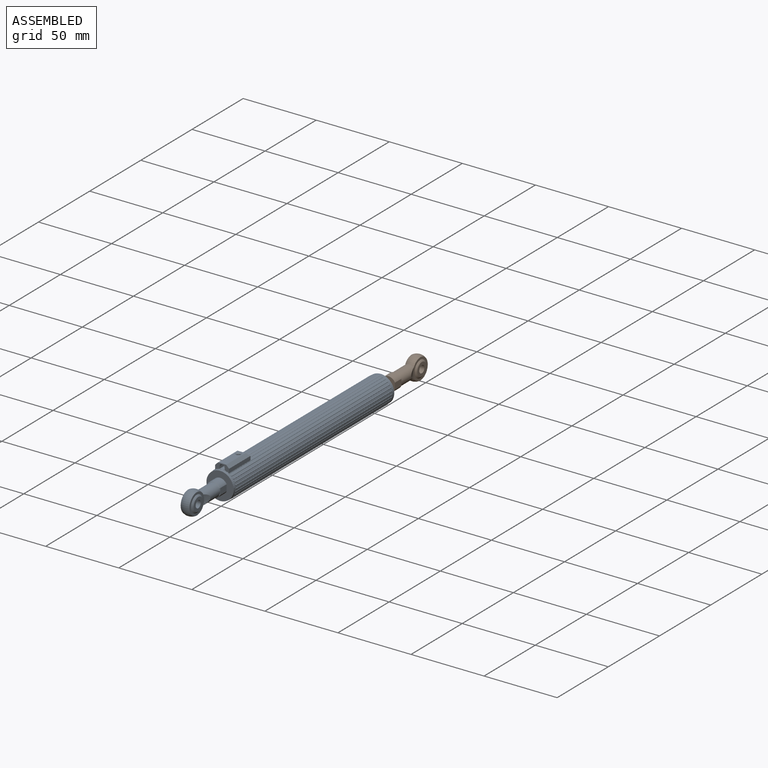
[diagram: assembled view]
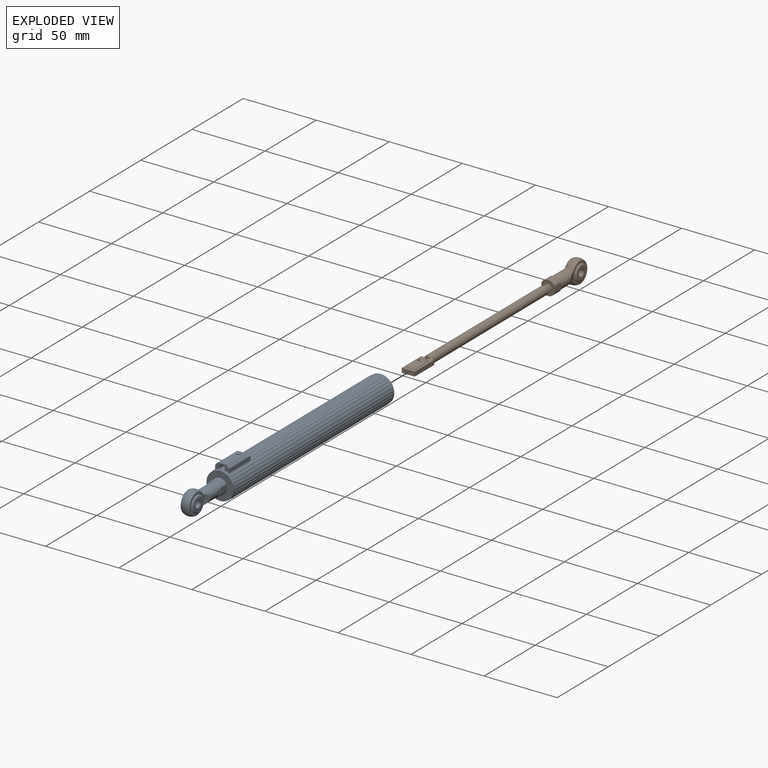
[diagram: exploded view]
GUIDED TOUR — MATED ASSEMBLY WITH SUBASSEMBLIES (Onshape document 5767ecd7e4b05752877c3d57, AutoMate assembly 5767ecd7e4b05752877c3d57_30284e9572ecbc8b604af3e0_4a058091241229afd16b0127_default)

This assembly has 11 component occurrences arranged in 2 top-level units: 0 individual components plus 2 subassemblies (S0, S1). The tour has two levels: first the top level, where each subassembly is treated as one rigid unit; then each subassembly is toured internally in its own section (nesting deeper than one subassembly level is flattened into its subassembly's section).

Components are labeled P0..P10 across the whole record; subassembly units are labeled S0..S1. A mate is a constraint between two units; its type names the relative motion it leaves free:
  FASTENED — locks the two components together rigidly (no relative motion),
  SLIDER — leaves translation along the listed axis free.
Axis/direction vectors are unit vectors and 'through' points are millimeter coordinates, both in the assembly's world frame.

TOP-LEVEL MATES (between units; each subassembly's internal mates are listed in its own section)
  1. SLIDER "Slider 1": S0 <-> S1, axis (0.000, 1.000, 0.000) through (0.10, -73.15, -0.04) mm

TOP-LEVEL ASSEMBLY ORDER
  1. S0 — the base component [order verified]
  2. S1 [order verified]
Order-tag legend:
  [order verified] — this step's position reverses a verified removal order: the component was checked to insert without passing through the ones already placed.

Of the 11 component occurrences, 5 carry the full construction recipe — the FeatureScript program that regenerates the part's solid from scratch; the rest are supplied as boundary geometry only. Each toured unit is shown spotlighted twice — assembled, then exploded with a leader line back to its socket (green = recipe-attached component, orange = geometry-only, blue = subassembly unit; the rest desaturated gray).
NOTE — this tour is split across 2 documents so each fits a 32k-token context. This is document 1: the component sections continue in the remaining 1 document, each repeating the header above.
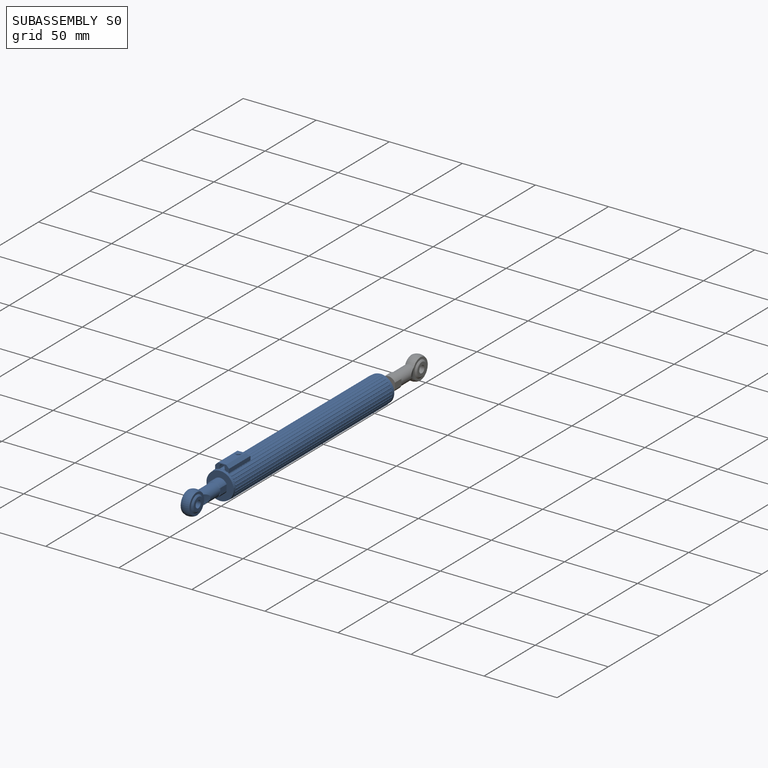
[diagram: subassembly S0 — assembled]
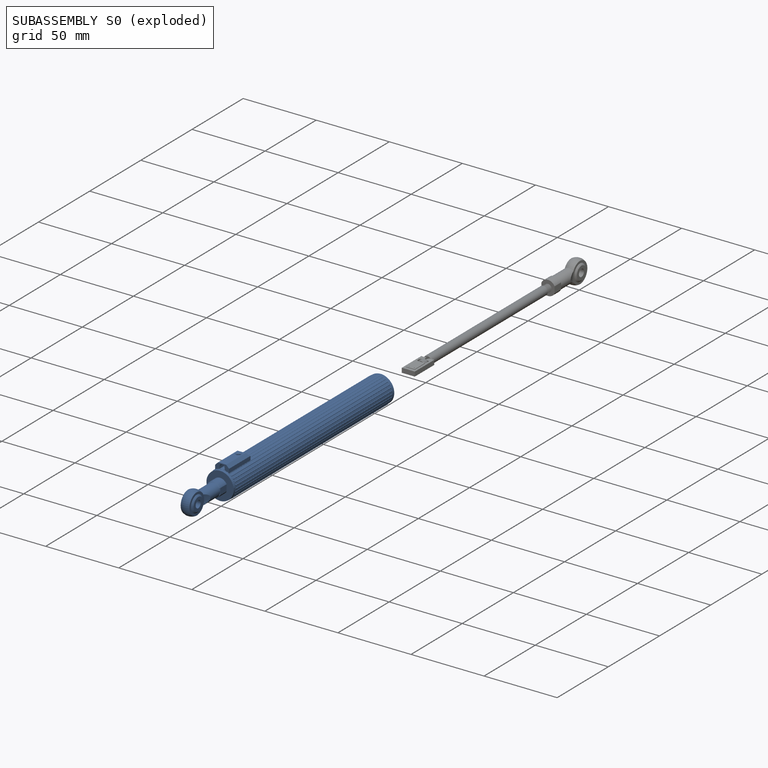
[diagram: subassembly S0 — exploded]
SUBASSEMBLY S0 — 8 components (P0, P1, P2, P4, P5, P6, P7, P9), of which 4 recipe-attached; toured below.
Held by: SLIDER mate "Slider 1" to S1.
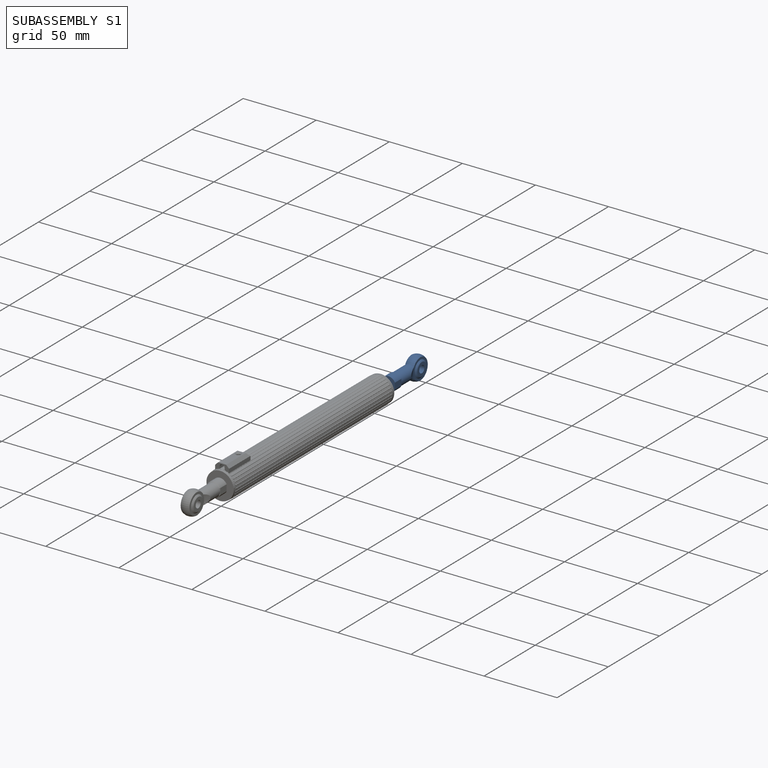
[diagram: subassembly S1 — assembled]
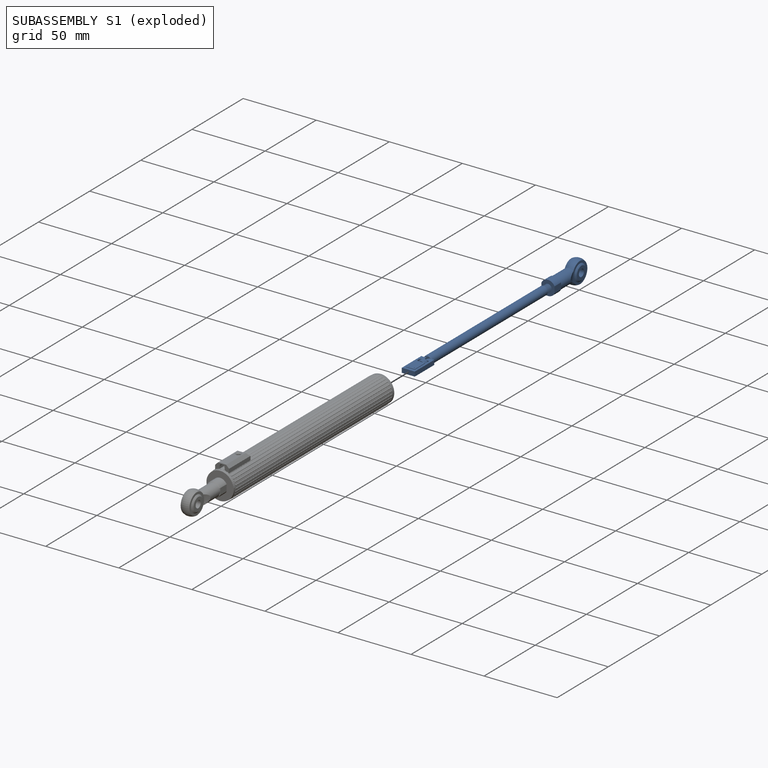
[diagram: subassembly S1 — exploded]
SUBASSEMBLY S1 — 3 components (P3, P8, P10), of which 1 recipe-attached; toured below.
Held by: SLIDER mate "Slider 1" to S0.
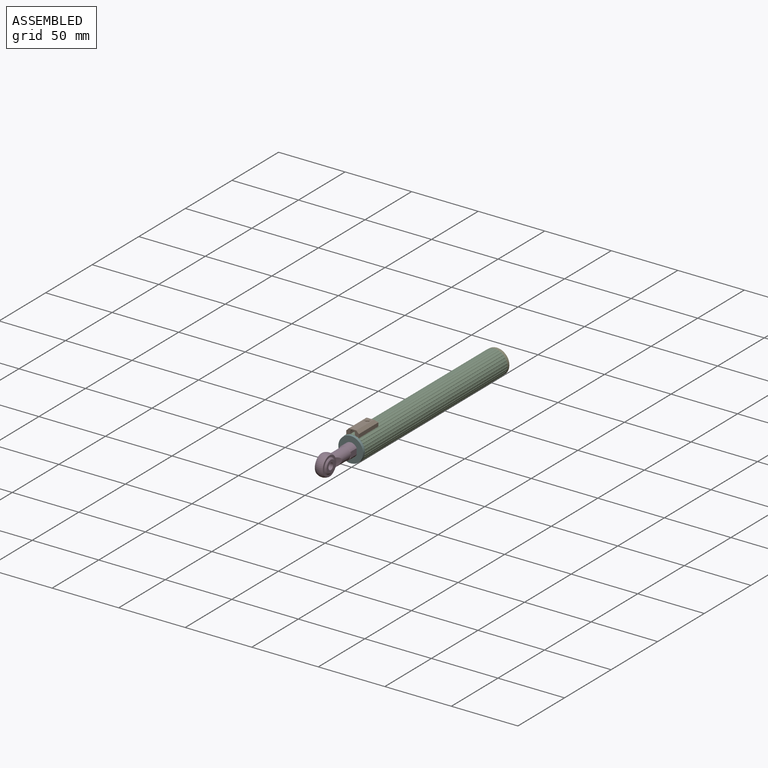
[diagram: subassembly S0 — assembled view]
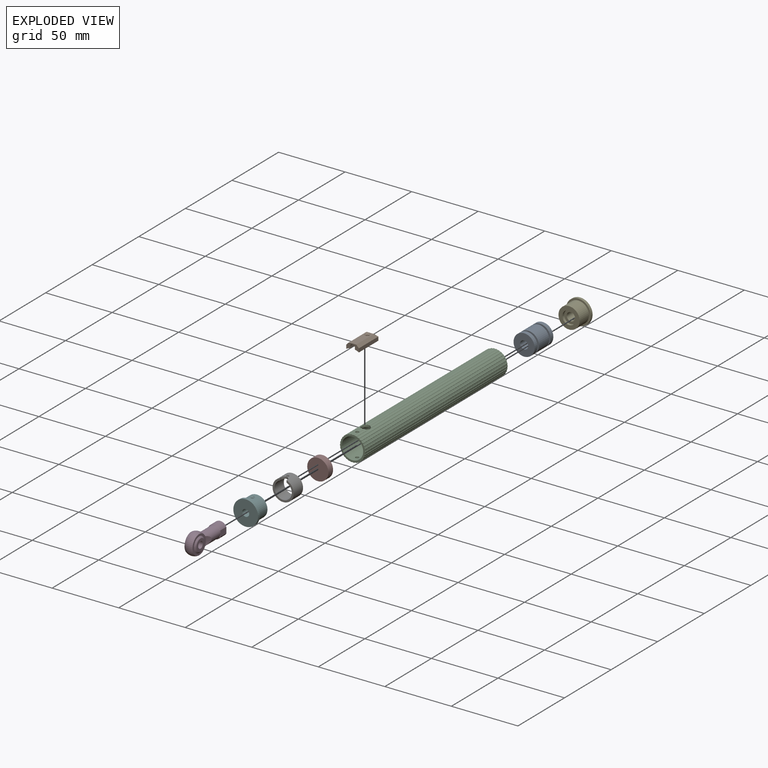
[diagram: subassembly S0 — exploded view]
SUBASSEMBLY S0 TOUR — 8 components, shown here in isolation at its own camera.

INTERNAL MATES
  1. FASTENED "Fastened 5": P6 <-> P1, direction (0.000, 1.000, 0.000) through (0.10, -99.15, -0.04) mm
  2. FASTENED "Fastened 7": P6 <-> P2, direction (0.000, 1.000, 0.000) through (0.10, -99.15, -0.04) mm
  3. FASTENED "Fastened 4": P9 <-> P2, direction (0.000, 1.000, 0.000) through (0.10, -73.15, -0.04) mm
  4. FASTENED "Fastened 6": P5 <-> P2, direction (0.000, -1.000, 0.000) through (0.10, 53.85, -0.04) mm
  5. FASTENED "Fastened 2": P9 <-> P7, direction (0.000, -1.000, 0.000) through (0.10, -78.15, -0.04) mm
  6. FASTENED "Fastened 1": P6 <-> P4, direction (0.000, -1.000, 0.000) through (0.10, -101.15, -0.04) mm
  7. FASTENED "Fastened 3": P0 <-> P2, direction (0.000, -1.000, 0.000) through (0.10, 22.85, -0.04) mm
  8. FASTENED "Fastened 4": P9 <-> P2, direction (0.000, 1.000, 0.000) through (0.10, -73.15, -0.04) mm
  9. FASTENED "Fastened 6": P5 <-> P2, direction (0.000, -1.000, 0.000) through (0.10, 53.85, -0.04) mm
  10. FASTENED "Fastened 1": P6 <-> P4, direction (0.000, -1.000, 0.000) through (0.10, -101.15, -0.04) mm
  11. FASTENED "Fastened 3": P0 <-> P2, direction (0.000, -1.000, 0.000) through (0.10, 22.85, -0.04) mm
  12. FASTENED "Fastened 7": P6 <-> P2, direction (0.000, 1.000, 0.000) through (0.10, -99.15, -0.04) mm
  13. FASTENED "Fastened 5": P6 <-> P1, direction (0.000, 1.000, 0.000) through (0.10, -99.15, -0.04) mm
  14. FASTENED "Fastened 2": P9 <-> P7, direction (0.000, -1.000, 0.000) through (0.10, -78.15, -0.04) mm

ASSEMBLY ORDER (within the subassembly)
  1. P2 — the base component [order heuristic]
  2. P9 [order verified]
  3. P7 — core [order heuristic]
  4. P0 [order verified]
  5. P6 — core [order heuristic]
  6. P5 — core [order heuristic]
  7. P1 [order verified]
  8. P4 [order verified]
Order-tag legend:
  [order verified] — this step's position reverses a verified removal order: the component was checked to insert without passing through the ones already placed.
  [order heuristic] — the first 4 components form the assembly's core: parts whose collision-free extraction could not be verified, listed in mate-graph order.
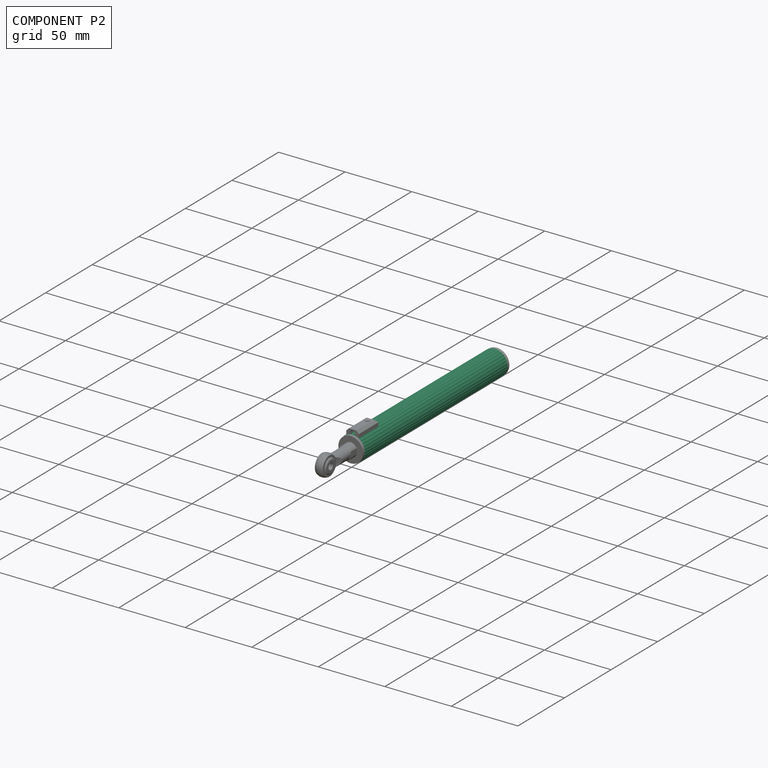
[diagram: component P2 — assembled]
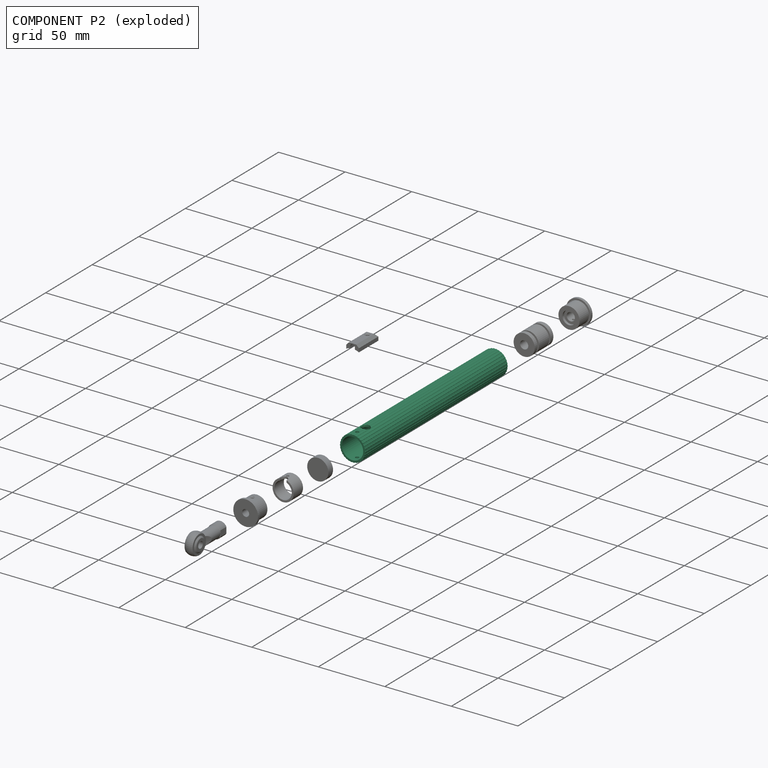
[diagram: component P2 — exploded]
COMPONENT P2 — recipe-attached (CADFS 00165724, mesh-verified: the recipe's output STEP matches this component's geometry to below the mesh-comparison resolution (tessellation chordal tolerance ~0.233 mm)).
Held by: FASTENED mate "Fastened 7" to P6; FASTENED mate "Fastened 4" to P9; FASTENED mate "Fastened 6" to P5; FASTENED mate "Fastened 3" to P0; FASTENED mate "Fastened 4" to P9; FASTENED mate "Fastened 6" to P5; FASTENED mate "Fastened 3" to P0; FASTENED mate "Fastened 7" to P6.
Construction recipe (FeatureScript — the CAD program that rebuilds this solid; sketch coordinates are in the units given by the * unit suffixes, e.g. mm):

FeatureScript 1511;
import(path : "onshape/std/geometry.fs", version : "1511.0");
import(path : "onshape/std/common.fs", version : "1511.0");
const mm = millimeter;
const VERTEX = EntityType.VERTEX;
const EDGE = EntityType.EDGE;
const FACE = EntityType.FACE;
const BODY = EntityType.BODY;
function v(x, y){return vector(x, y);}
function OD(order){return orderDisambiguation(order);}
function OSD(set){return originalSetDisambiguation(set);}
function TD(topology){return topologyDisambiguation(topology);}
function TDD(query){return trueDependencyDisambiguation(query);}
function sQuery(a, b, c) {return sketchEntityQuery(a, b, c);}

annotation { "Feature Type Name" : "Feature", "Feature Type Description" : "" }
export const myFeature = defineFeature(function(context is Context, id is Id, definition is map)
    precondition{}
    {
        {
            assignVariable(context, id + "F0", {"name" : "Main_Length", "anyValue" : 153});
        }
        {
            assignVariable(context, id + "F1", {"name" : "Bore_Depth_F", "anyValue" : 26});
        }
        {
            assignVariable(context, id + "F2", {"name" : "Bore_Depth_R", "anyValue" : 31});
        }
        {
            var Q0;
            Q0=qCreatedBy(makeId("Front.planeOp"),FACE);
            var sketch = newSketch(context, id + "F3", { "sketchPlane" : qUnion([Q0])});
            skLineSegment(sketch, "E0", {"start": v(-5.25, -3.45) * mm, "end": v(-5.25, -2.65) * mm});
            skLineSegment(sketch, "E1", {"start": v(9.2, 1.38) * mm, "end": v(9.42, 1.2) * mm});
            skArc(sketch, "E2", {"start": v(-5.35, -2.55) * mm, "mid": v(-5.28, -2.58) * mm, "end": v(-5.25, -2.65) * mm});
            skArc(sketch, "E3", {"start": v(6.3, 4.75) * mm, "mid": v(6.37, 4.72) * mm, "end": v(6.4, 4.65) * mm});
            skArc(sketch, "E4", {"start": v(-5.25, -6.04) * mm, "mid": v(0, -8) * mm, "end": v(5.25, -6.04) * mm});
            skLineSegment(sketch, "E5", {"start": v(1.53, 9.17) * mm, "end": v(1.78, 9.33) * mm});
            skLineSegment(sketch, "E6", {"start": v(-7.18, -5.91) * mm, "end": v(-7.2, -6.2) * mm});
            skArc(sketch, "E7", {"start": v(-8.33, -4.58) * mm, "mid": v(-8.23, -4.75) * mm, "end": v(-8.13, -4.92) * mm});
            skLineSegment(sketch, "E8", {"start": v(5.13, 7.76) * mm, "end": v(5.42, 7.8) * mm});
            skLineSegment(sketch, "E9", {"start": v(6.4, -2.45) * mm, "end": v(6.4, 0) * mm});
            skLineSegment(sketch, "E10", {"start": v(-2.33, -9) * mm, "end": v(-2.17, -9.25) * mm});
            skArc(sketch, "E11", {"start": v(8.97, -3.13) * mm, "mid": v(9.04, -2.94) * mm, "end": v(9.1, -2.74) * mm});
            skArc(sketch, "E12", {"start": v(-4.05, -8.6) * mm, "mid": v(-3.86, -8.68) * mm, "end": v(-3.68, -8.76) * mm});
            skArc(sketch, "E13", {"start": v(4.05, 8.6) * mm, "mid": v(3.86, 8.68) * mm, "end": v(3.68, 8.76) * mm});
            skLineSegment(sketch, "E14", {"start": v(6.63, 6.52) * mm, "end": v(6.92, 6.5) * mm});
            skArc(sketch, "E15", {"start": v(-6.4, 3.65) * mm, "mid": v(-6.37, 3.58) * mm, "end": v(-6.3, 3.55) * mm});
            skArc(sketch, "E16", {"start": v(5.74, 7.57) * mm, "mid": v(5.58, 7.69) * mm, "end": v(5.42, 7.8) * mm});
            skLineSegment(sketch, "E17", {"start": v(-9.2, 1.38) * mm, "end": v(-9.42, 1.2) * mm});
            skArc(sketch, "E18", {"start": v(1.78, -9.33) * mm, "mid": v(1.98, -9.3) * mm, "end": v(2.17, -9.25) * mm});
            skLineSegment(sketch, "E19", {"start": v(-5.8, 7.28) * mm, "end": v(-5.74, 7.57) * mm});
            skArc(sketch, "E20", {"start": v(-2.17, -9.25) * mm, "mid": v(-1.98, -9.3) * mm, "end": v(-1.78, -9.33) * mm});
            skLineSegment(sketch, "E21", {"start": v(7.84, 5) * mm, "end": v(8.13, 4.92) * mm});
            skLineSegment(sketch, "E22", {"start": v(2.33, 9) * mm, "end": v(2.17, 9.25) * mm});
            skArc(sketch, "E23", {"start": v(5.25, -3.45) * mm, "mid": v(5.28, -3.52) * mm, "end": v(5.35, -3.55) * mm});
            skLineSegment(sketch, "E24", {"start": v(5.8, -7.28) * mm, "end": v(5.74, -7.57) * mm});
            skArc(sketch, "E25", {"start": v(5.35, 2.55) * mm, "mid": v(5.28, 2.58) * mm, "end": v(5.25, 2.65) * mm});
            skArc(sketch, "E26", {"start": v(4.15, -8.32) * mm, "mid": v(4.65, -8.05) * mm, "end": v(5.13, -7.76) * mm});
            skArc(sketch, "E27", {"start": v(-5.35, 4.75) * mm, "mid": v(-5.28, 4.78) * mm, "end": v(-5.25, 4.85) * mm});
            skArc(sketch, "E28", {"start": v(-8.13, 4.92) * mm, "mid": v(-8.23, 4.75) * mm, "end": v(-8.33, 4.58) * mm});
            skLineSegment(sketch, "E29", {"start": v(7.84, -5) * mm, "end": v(8.13, -4.92) * mm});
            skArc(sketch, "E30", {"start": v(8.33, 4.58) * mm, "mid": v(8.23, 4.75) * mm, "end": v(8.13, 4.92) * mm});
            skLineSegment(sketch, "E31", {"start": v(-6.3, 3.55) * mm, "end": v(-5.35, 3.55) * mm});
            skLineSegment(sketch, "E32", {"start": v(-5.25, 3.45) * mm, "end": v(-5.25, 2.65) * mm});
            skArc(sketch, "E33", {"start": v(9.1, 2.74) * mm, "mid": v(9.04, 2.94) * mm, "end": v(8.97, 3.13) * mm});
            skLineSegment(sketch, "E34", {"start": v(6.3, 3.55) * mm, "end": v(5.35, 3.55) * mm});
            skLineSegment(sketch, "E35", {"start": v(4.15, -8.32) * mm, "end": v(4.05, -8.6) * mm});
            skLineSegment(sketch, "E36", {"start": v(5.25, 6.04) * mm, "end": v(5.25, 4.85) * mm});
            skArc(sketch, "E37", {"start": v(8.71, 3.26) * mm, "mid": v(8.5, 3.78) * mm, "end": v(8.25, 4.3) * mm});
            skArc(sketch, "E38", {"start": v(0.4, -9.3) * mm, "mid": v(0.97, -9.25) * mm, "end": v(1.53, -9.17) * mm});
            skArc(sketch, "E39", {"start": v(9.47, 0.8) * mm, "mid": v(9.45, 1) * mm, "end": v(9.42, 1.2) * mm});
            skArc(sketch, "E40", {"start": v(-4.15, 8.32) * mm, "mid": v(-4.65, 8.05) * mm, "end": v(-5.13, 7.76) * mm});
            skLineSegment(sketch, "E41", {"start": v(-0.4, 9.3) * mm, "end": v(-0.2, 9.5) * mm});
            skLineSegment(sketch, "E42", {"start": v(8.25, 4.3) * mm, "end": v(8.33, 4.58) * mm});
            skLineSegment(sketch, "E43", {"start": v(2.33, -9) * mm, "end": v(2.17, -9.25) * mm});
            skArc(sketch, "E44", {"start": v(-0.4, 9.3) * mm, "mid": v(-0.97, 9.25) * mm, "end": v(-1.53, 9.17) * mm});
            skLineSegment(sketch, "E45", {"start": v(-5.13, 7.76) * mm, "end": v(-5.42, 7.8) * mm});
            skLineSegment(sketch, "E46", {"start": v(-2.33, 9) * mm, "end": v(-2.17, 9.25) * mm});
            skLineSegment(sketch, "E47", {"start": v(6.63, -6.52) * mm, "end": v(6.92, -6.5) * mm});
            skArc(sketch, "E48", {"start": v(9.42, -1.2) * mm, "mid": v(9.45, -1) * mm, "end": v(9.47, -0.8) * mm});
            skArc(sketch, "E49", {"start": v(-3.68, 8.76) * mm, "mid": v(-3.86, 8.68) * mm, "end": v(-4.05, 8.6) * mm});
            skArc(sketch, "E50", {"start": v(9.2, 1.38) * mm, "mid": v(9.1, 1.93) * mm, "end": v(8.96, 2.48) * mm});
            skArc(sketch, "E51", {"start": v(5.35, 4.75) * mm, "mid": v(5.28, 4.78) * mm, "end": v(5.25, 4.85) * mm});
            skLineSegment(sketch, "E52", {"start": v(5.25, 3.45) * mm, "end": v(5.25, 2.65) * mm});
            skArc(sketch, "E53", {"start": v(-0.2, -9.5) * mm, "mid": v(0, -9.5) * mm, "end": v(0.2, -9.5) * mm});
            skArc(sketch, "E54", {"start": v(7.2, 6.2) * mm, "mid": v(7.06, 6.36) * mm, "end": v(6.92, 6.5) * mm});
            skLineSegment(sketch, "E55", {"start": v(3.4, 8.65) * mm, "end": v(3.68, 8.76) * mm});
            skArc(sketch, "E56", {"start": v(6.4, 3.65) * mm, "mid": v(6.37, 3.58) * mm, "end": v(6.3, 3.55) * mm});
            skLineSegment(sketch, "E57", {"start": v(-6.4, -2.45) * mm, "end": v(-6.4, 0) * mm});
            skArc(sketch, "E58", {"start": v(-2.33, 9) * mm, "mid": v(-2.87, 8.84) * mm, "end": v(-3.4, 8.65) * mm});
            skLineSegment(sketch, "E59", {"start": v(-1.53, 9.17) * mm, "end": v(-1.78, 9.33) * mm});
            skLineSegment(sketch, "E60", {"start": v(0.4, -9.3) * mm, "end": v(0.2, -9.5) * mm});
            skArc(sketch, "E61", {"start": v(-6.92, 6.5) * mm, "mid": v(-7.06, 6.36) * mm, "end": v(-7.2, 6.2) * mm});
            skArc(sketch, "E62", {"start": v(-8.25, 4.3) * mm, "mid": v(-8.5, 3.78) * mm, "end": v(-8.71, 3.26) * mm});
            skArc(sketch, "E63", {"start": v(6.3, -4.75) * mm, "mid": v(6.37, -4.72) * mm, "end": v(6.4, -4.65) * mm});
            skLineSegment(sketch, "E64", {"start": v(-6.4, 4.65) * mm, "end": v(-6.4, 3.65) * mm});
            skLineSegment(sketch, "E65", {"start": v(-6.4, 2.45) * mm, "end": v(-6.4, 0) * mm});
            skArc(sketch, "E66", {"start": v(8.25, -4.3) * mm, "mid": v(8.5, -3.78) * mm, "end": v(8.71, -3.26) * mm});
            skArc(sketch, "E67", {"start": v(-6.3, 2.55) * mm, "mid": v(-6.37, 2.52) * mm, "end": v(-6.4, 2.45) * mm});
            skLineSegment(sketch, "E68", {"start": v(-5.25, 6.04) * mm, "end": v(-5.25, 4.85) * mm});
            skLineSegment(sketch, "E69", {"start": v(-5.35, 4.75) * mm, "end": v(-6.3, 4.75) * mm});
            skLineSegment(sketch, "E70", {"start": v(-5.35, 2.55) * mm, "end": v(-6.3, 2.55) * mm});
            skArc(sketch, "E71", {"start": v(-5.25, 3.45) * mm, "mid": v(-5.28, 3.52) * mm, "end": v(-5.35, 3.55) * mm});
            skArc(sketch, "E72", {"start": v(-5.35, 2.55) * mm, "mid": v(-5.28, 2.58) * mm, "end": v(-5.25, 2.65) * mm});
            skArc(sketch, "E73", {"start": v(-6.3, 4.75) * mm, "mid": v(-6.37, 4.72) * mm, "end": v(-6.4, 4.65) * mm});
            skArc(sketch, "E74", {"start": v(6.3, 2.55) * mm, "mid": v(6.37, 2.52) * mm, "end": v(6.4, 2.45) * mm});
            skLineSegment(sketch, "E75", {"start": v(5.35, 2.55) * mm, "end": v(6.3, 2.55) * mm});
            skArc(sketch, "E76", {"start": v(5.25, 3.45) * mm, "mid": v(5.28, 3.52) * mm, "end": v(5.35, 3.55) * mm});
            skArc(sketch, "E77", {"start": v(0.2, 9.5) * mm, "mid": v(0, 9.5) * mm, "end": v(-0.2, 9.5) * mm});
            skLineSegment(sketch, "E78", {"start": v(5.35, 4.75) * mm, "end": v(6.3, 4.75) * mm});
            skLineSegment(sketch, "E79", {"start": v(6.4, 2.45) * mm, "end": v(6.4, 0) * mm});
            skLineSegment(sketch, "E80", {"start": v(6.4, 4.65) * mm, "end": v(6.4, 3.65) * mm});
            skArc(sketch, "E81", {"start": v(-5.35, -4.75) * mm, "mid": v(-5.28, -4.78) * mm, "end": v(-5.25, -4.85) * mm});
            skLineSegment(sketch, "E82", {"start": v(-6.3, -3.55) * mm, "end": v(-5.35, -3.55) * mm});
            skLineSegment(sketch, "E83", {"start": v(-5.35, -2.55) * mm, "end": v(-6.3, -2.55) * mm});
            skArc(sketch, "E84", {"start": v(-5.25, -3.45) * mm, "mid": v(-5.28, -3.52) * mm, "end": v(-5.35, -3.55) * mm});
            skArc(sketch, "E85", {"start": v(-6.3, -2.55) * mm, "mid": v(-6.37, -2.52) * mm, "end": v(-6.4, -2.45) * mm});
            skArc(sketch, "E86", {"start": v(-6.4, -3.65) * mm, "mid": v(-6.37, -3.58) * mm, "end": v(-6.3, -3.55) * mm});
            skArc(sketch, "E87", {"start": v(-6.3, -4.75) * mm, "mid": v(-6.37, -4.72) * mm, "end": v(-6.4, -4.65) * mm});
            skArc(sketch, "E88", {"start": v(5.35, -2.55) * mm, "mid": v(5.28, -2.58) * mm, "end": v(5.25, -2.65) * mm});
            skLineSegment(sketch, "E89", {"start": v(-3.4, 8.65) * mm, "end": v(-3.68, 8.76) * mm});
            skArc(sketch, "E90", {"start": v(6.3, -2.55) * mm, "mid": v(6.37, -2.52) * mm, "end": v(6.4, -2.45) * mm});
            skLineSegment(sketch, "E91", {"start": v(5.35, -2.55) * mm, "end": v(6.3, -2.55) * mm});
            skArc(sketch, "E92", {"start": v(6.4, -3.65) * mm, "mid": v(6.37, -3.58) * mm, "end": v(6.3, -3.55) * mm});
            skLineSegment(sketch, "E93", {"start": v(6.3, -3.55) * mm, "end": v(5.35, -3.55) * mm});
            skArc(sketch, "E94", {"start": v(5.35, -4.75) * mm, "mid": v(5.28, -4.78) * mm, "end": v(5.25, -4.85) * mm});
            skLineSegment(sketch, "E95", {"start": v(-5.25, -6.04) * mm, "end": v(-5.25, -4.85) * mm});
            skLineSegment(sketch, "E96", {"start": v(5.25, -3.45) * mm, "end": v(5.25, -2.65) * mm});
            skLineSegment(sketch, "E97", {"start": v(6.4, -4.65) * mm, "end": v(6.4, -3.65) * mm});
            skLineSegment(sketch, "E98", {"start": v(-5.35, -4.75) * mm, "end": v(-6.3, -4.75) * mm});
            skArc(sketch, "E99", {"start": v(-8.97, 3.13) * mm, "mid": v(-9.04, 2.94) * mm, "end": v(-9.1, 2.74) * mm});
            skLineSegment(sketch, "E100", {"start": v(-6.4, -4.65) * mm, "end": v(-6.4, -3.65) * mm});
            skLineSegment(sketch, "E101", {"start": v(5.35, -4.75) * mm, "end": v(6.3, -4.75) * mm});
            skLineSegment(sketch, "E102", {"start": v(-7.84, 5) * mm, "end": v(-8.13, 4.92) * mm});
            skLineSegment(sketch, "E103", {"start": v(5.25, -6.04) * mm, "end": v(5.25, -4.85) * mm});
            skArc(sketch, "E104", {"start": v(5.25, 6.04) * mm, "mid": v(0, 8) * mm, "end": v(-5.25, 6.04) * mm});
            skLineSegment(sketch, "E105", {"start": v(-0.4, -9.3) * mm, "end": v(-0.2, -9.5) * mm});
            skArc(sketch, "E106", {"start": v(2.33, -9) * mm, "mid": v(2.87, -8.84) * mm, "end": v(3.4, -8.65) * mm});
            skLineSegment(sketch, "E107", {"start": v(1.53, -9.17) * mm, "end": v(1.78, -9.33) * mm});
            skArc(sketch, "E108", {"start": v(3.68, -8.76) * mm, "mid": v(3.86, -8.68) * mm, "end": v(4.05, -8.6) * mm});
            skArc(sketch, "E109", {"start": v(-9.1, -2.74) * mm, "mid": v(-9.04, -2.94) * mm, "end": v(-8.97, -3.13) * mm});
            skLineSegment(sketch, "E110", {"start": v(3.4, -8.65) * mm, "end": v(3.68, -8.76) * mm});
            skArc(sketch, "E111", {"start": v(5.8, -7.28) * mm, "mid": v(6.22, -6.91) * mm, "end": v(6.63, -6.52) * mm});
            skArc(sketch, "E112", {"start": v(5.42, -7.8) * mm, "mid": v(5.58, -7.69) * mm, "end": v(5.74, -7.57) * mm});
            skLineSegment(sketch, "E113", {"start": v(5.13, -7.76) * mm, "end": v(5.42, -7.8) * mm});
            skLineSegment(sketch, "E114", {"start": v(-5.13, -7.76) * mm, "end": v(-5.42, -7.8) * mm});
            skLineSegment(sketch, "E115", {"start": v(7.18, -5.91) * mm, "end": v(7.2, -6.2) * mm});
            skLineSegment(sketch, "E116", {"start": v(-6.63, -6.52) * mm, "end": v(-6.92, -6.5) * mm});
            skArc(sketch, "E117", {"start": v(8.13, -4.92) * mm, "mid": v(8.23, -4.75) * mm, "end": v(8.33, -4.58) * mm});
            skArc(sketch, "E118", {"start": v(6.92, -6.5) * mm, "mid": v(7.06, -6.36) * mm, "end": v(7.2, -6.2) * mm});
            skArc(sketch, "E119", {"start": v(-5.74, -7.57) * mm, "mid": v(-5.58, -7.69) * mm, "end": v(-5.42, -7.8) * mm});
            skArc(sketch, "E120", {"start": v(8.96, -2.48) * mm, "mid": v(9.1, -1.93) * mm, "end": v(9.2, -1.38) * mm});
            skLineSegment(sketch, "E121", {"start": v(8.96, -2.48) * mm, "end": v(9.1, -2.74) * mm});
            skLineSegment(sketch, "E122", {"start": v(8.71, -3.26) * mm, "end": v(8.97, -3.13) * mm});
            skArc(sketch, "E123", {"start": v(9.28, -0.57) * mm, "mid": v(9.3, 0) * mm, "end": v(9.28, 0.57) * mm});
            skLineSegment(sketch, "E124", {"start": v(9.28, -0.57) * mm, "end": v(9.47, -0.8) * mm});
            skLineSegment(sketch, "E125", {"start": v(-1.53, -9.17) * mm, "end": v(-1.78, -9.33) * mm});
            skLineSegment(sketch, "E126", {"start": v(9.2, -1.38) * mm, "end": v(9.42, -1.2) * mm});
            skLineSegment(sketch, "E127", {"start": v(8.71, 3.26) * mm, "end": v(8.97, 3.13) * mm});
            skLineSegment(sketch, "E128", {"start": v(8.96, 2.48) * mm, "end": v(9.1, 2.74) * mm});
            skArc(sketch, "E129", {"start": v(7.84, 5) * mm, "mid": v(7.52, 5.47) * mm, "end": v(7.18, 5.91) * mm});
            skArc(sketch, "E130", {"start": v(6.63, 6.52) * mm, "mid": v(6.22, 6.91) * mm, "end": v(5.8, 7.28) * mm});
            skLineSegment(sketch, "E131", {"start": v(7.18, 5.91) * mm, "end": v(7.2, 6.2) * mm});
            skArc(sketch, "E132", {"start": v(5.13, 7.76) * mm, "mid": v(4.65, 8.05) * mm, "end": v(4.15, 8.32) * mm});
            skLineSegment(sketch, "E133", {"start": v(5.8, 7.28) * mm, "end": v(5.74, 7.57) * mm});
            skArc(sketch, "E134", {"start": v(3.4, 8.65) * mm, "mid": v(2.87, 8.84) * mm, "end": v(2.33, 9) * mm});
            skLineSegment(sketch, "E135", {"start": v(4.15, 8.32) * mm, "end": v(4.05, 8.6) * mm});
            skArc(sketch, "E136", {"start": v(1.53, 9.17) * mm, "mid": v(0.97, 9.25) * mm, "end": v(0.4, 9.3) * mm});
            skArc(sketch, "E137", {"start": v(2.17, 9.25) * mm, "mid": v(1.98, 9.3) * mm, "end": v(1.78, 9.33) * mm});
            skLineSegment(sketch, "E138", {"start": v(0.4, 9.3) * mm, "end": v(0.2, 9.5) * mm});
            skArc(sketch, "E139", {"start": v(-1.78, 9.33) * mm, "mid": v(-1.98, 9.3) * mm, "end": v(-2.17, 9.25) * mm});
            skLineSegment(sketch, "E140", {"start": v(-4.15, 8.32) * mm, "end": v(-4.05, 8.6) * mm});
            skArc(sketch, "E141", {"start": v(-5.8, 7.28) * mm, "mid": v(-6.22, 6.91) * mm, "end": v(-6.63, 6.52) * mm});
            skArc(sketch, "E142", {"start": v(-5.42, 7.8) * mm, "mid": v(-5.58, 7.69) * mm, "end": v(-5.74, 7.57) * mm});
            skLineSegment(sketch, "E143", {"start": v(-9.2, -1.38) * mm, "end": v(-9.42, -1.2) * mm});
            skLineSegment(sketch, "E144", {"start": v(-7.18, 5.91) * mm, "end": v(-7.2, 6.2) * mm});
            skLineSegment(sketch, "E145", {"start": v(-6.63, 6.52) * mm, "end": v(-6.92, 6.5) * mm});
            skArc(sketch, "E146", {"start": v(-8.96, 2.48) * mm, "mid": v(-9.1, 1.93) * mm, "end": v(-9.2, 1.38) * mm});
            skLineSegment(sketch, "E147", {"start": v(-8.96, 2.48) * mm, "end": v(-9.1, 2.74) * mm});
            skLineSegment(sketch, "E148", {"start": v(-8.71, 3.26) * mm, "end": v(-8.97, 3.13) * mm});
            skArc(sketch, "E149", {"start": v(-9.28, 0.57) * mm, "mid": v(-9.3, 0) * mm, "end": v(-9.28, -0.57) * mm});
            skArc(sketch, "E150", {"start": v(-9.42, 1.2) * mm, "mid": v(-9.45, 1) * mm, "end": v(-9.47, 0.8) * mm});
            skLineSegment(sketch, "E151", {"start": v(-9.28, 0.57) * mm, "end": v(-9.47, 0.8) * mm});
            skLineSegment(sketch, "E152", {"start": v(8.25, -4.3) * mm, "end": v(8.33, -4.58) * mm});
            skArc(sketch, "E153", {"start": v(-9.2, -1.38) * mm, "mid": v(-9.1, -1.93) * mm, "end": v(-8.96, -2.48) * mm});
            skArc(sketch, "E154", {"start": v(-9.47, -0.8) * mm, "mid": v(-9.45, -1) * mm, "end": v(-9.42, -1.2) * mm});
            skLineSegment(sketch, "E155", {"start": v(-9.28, -0.57) * mm, "end": v(-9.47, -0.8) * mm});
            skArc(sketch, "E156", {"start": v(-8.71, -3.26) * mm, "mid": v(-8.5, -3.78) * mm, "end": v(-8.25, -4.3) * mm});
            skLineSegment(sketch, "E157", {"start": v(-8.71, -3.26) * mm, "end": v(-8.97, -3.13) * mm});
            skLineSegment(sketch, "E158", {"start": v(-8.96, -2.48) * mm, "end": v(-9.1, -2.74) * mm});
            skArc(sketch, "E159", {"start": v(-7.84, -5) * mm, "mid": v(-7.52, -5.47) * mm, "end": v(-7.18, -5.91) * mm});
            skLineSegment(sketch, "E160", {"start": v(-7.84, -5) * mm, "end": v(-8.13, -4.92) * mm});
            skLineSegment(sketch, "E161", {"start": v(-8.25, -4.3) * mm, "end": v(-8.33, -4.58) * mm});
            skArc(sketch, "E162", {"start": v(-6.63, -6.52) * mm, "mid": v(-6.22, -6.91) * mm, "end": v(-5.8, -7.28) * mm});
            skLineSegment(sketch, "E163", {"start": v(9.28, 0.57) * mm, "end": v(9.47, 0.8) * mm});
            skArc(sketch, "E164", {"start": v(-7.2, -6.2) * mm, "mid": v(-7.06, -6.36) * mm, "end": v(-6.92, -6.5) * mm});
            skArc(sketch, "E165", {"start": v(7.18, -5.91) * mm, "mid": v(7.52, -5.47) * mm, "end": v(7.84, -5) * mm});
            skLineSegment(sketch, "E166", {"start": v(-5.8, -7.28) * mm, "end": v(-5.74, -7.57) * mm});
            skArc(sketch, "E167", {"start": v(-3.4, -8.65) * mm, "mid": v(-2.87, -8.84) * mm, "end": v(-2.33, -9) * mm});
            skLineSegment(sketch, "E168", {"start": v(-3.4, -8.65) * mm, "end": v(-3.68, -8.76) * mm});
            skLineSegment(sketch, "E169", {"start": v(-4.15, -8.32) * mm, "end": v(-4.05, -8.6) * mm});
            skArc(sketch, "E170", {"start": v(-1.53, -9.17) * mm, "mid": v(-0.97, -9.25) * mm, "end": v(-0.4, -9.3) * mm});
            skArc(sketch, "E171", {"start": v(-7.18, 5.91) * mm, "mid": v(-7.52, 5.47) * mm, "end": v(-7.84, 5) * mm});
            skLineSegment(sketch, "E172", {"start": v(-8.25, 4.3) * mm, "end": v(-8.33, 4.58) * mm});
            skArc(sketch, "E173", {"start": v(-5.13, -7.76) * mm, "mid": v(-4.65, -8.05) * mm, "end": v(-4.15, -8.32) * mm});
            skSolve(sketch);
        }
        {
            var Q0;
            Q0=makeQuery(id+"F3.imprint","IMPRINT",FACE,{"disambiguationData":[TD([[makeQuery(id+"F3.imprint","IMPRINT",EDGE,{"derivedFrom":sQuery(id+"F3.wireOp",EDGE,"E0")}),1.0]])]});
            extrude(context, id + "F4", {"entities" : qUnion([Q0]), "depth" : (getVariable(context, 'Main_Length') - getVariable(context, 'Bore_Depth_F') - getVariable(context, 'Bore_Depth_R')) * mm});
        }
        {
            var Q0;
            Q0=makeQuery(id+"F4.opExtrude","CAP_FACE",FACE,{"disambiguationData":[OSD([sQuery(id+"F3.wireOp",EDGE,"E0"),sQuery(id+"F3.wireOp",EDGE,"E1"),sQuery(id+"F3.wireOp",EDGE,"E2"),sQuery(id+"F3.wireOp",EDGE,"E3"),sQuery(id+"F3.wireOp",EDGE,"E4"),sQuery(id+"F3.wireOp",EDGE,"E5"),sQuery(id+"F3.wireOp",EDGE,"E6"),sQuery(id+"F3.wireOp",EDGE,"E7"),sQuery(id+"F3.wireOp",EDGE,"E8"),sQuery(id+"F3.wireOp",EDGE,"E9"),sQuery(id+"F3.wireOp",EDGE,"E10"),sQuery(id+"F3.wireOp",EDGE,"E11"),sQuery(id+"F3.wireOp",EDGE,"E12"),sQuery(id+"F3.wireOp",EDGE,"E13"),sQuery(id+"F3.wireOp",EDGE,"E14"),sQuery(id+"F3.wireOp",EDGE,"E15"),sQuery(id+"F3.wireOp",EDGE,"E16"),sQuery(id+"F3.wireOp",EDGE,"E17"),sQuery(id+"F3.wireOp",EDGE,"E18"),sQuery(id+"F3.wireOp",EDGE,"E19"),sQuery(id+"F3.wireOp",EDGE,"E20"),sQuery(id+"F3.wireOp",EDGE,"E21"),sQuery(id+"F3.wireOp",EDGE,"E22"),sQuery(id+"F3.wireOp",EDGE,"E23"),sQuery(id+"F3.wireOp",EDGE,"E24"),sQuery(id+"F3.wireOp",EDGE,"E25"),sQuery(id+"F3.wireOp",EDGE,"E26"),sQuery(id+"F3.wireOp",EDGE,"E27"),sQuery(id+"F3.wireOp",EDGE,"E28"),sQuery(id+"F3.wireOp",EDGE,"E29"),sQuery(id+"F3.wireOp",EDGE,"E30"),sQuery(id+"F3.wireOp",EDGE,"E31"),sQuery(id+"F3.wireOp",EDGE,"E32"),sQuery(id+"F3.wireOp",EDGE,"E33"),sQuery(id+"F3.wireOp",EDGE,"E34"),sQuery(id+"F3.wireOp",EDGE,"E35"),sQuery(id+"F3.wireOp",EDGE,"E36"),sQuery(id+"F3.wireOp",EDGE,"E37"),sQuery(id+"F3.wireOp",EDGE,"E38"),sQuery(id+"F3.wireOp",EDGE,"E39"),sQuery(id+"F3.wireOp",EDGE,"E40"),sQuery(id+"F3.wireOp",EDGE,"E41"),sQuery(id+"F3.wireOp",EDGE,"E42"),sQuery(id+"F3.wireOp",EDGE,"E43"),sQuery(id+"F3.wireOp",EDGE,"E44"),sQuery(id+"F3.wireOp",EDGE,"E45"),sQuery(id+"F3.wireOp",EDGE,"E46"),sQuery(id+"F3.wireOp",EDGE,"E47"),sQuery(id+"F3.wireOp",EDGE,"E48"),sQuery(id+"F3.wireOp",EDGE,"E49"),sQuery(id+"F3.wireOp",EDGE,"E50"),sQuery(id+"F3.wireOp",EDGE,"E51"),sQuery(id+"F3.wireOp",EDGE,"E52"),sQuery(id+"F3.wireOp",EDGE,"E53"),sQuery(id+"F3.wireOp",EDGE,"E54"),sQuery(id+"F3.wireOp",EDGE,"E55"),sQuery(id+"F3.wireOp",EDGE,"E56"),sQuery(id+"F3.wireOp",EDGE,"E57"),sQuery(id+"F3.wireOp",EDGE,"E58"),sQuery(id+"F3.wireOp",EDGE,"E59"),sQuery(id+"F3.wireOp",EDGE,"E60"),sQuery(id+"F3.wireOp",EDGE,"E61"),sQuery(id+"F3.wireOp",EDGE,"E62"),sQuery(id+"F3.wireOp",EDGE,"E63"),sQuery(id+"F3.wireOp",EDGE,"E64"),sQuery(id+"F3.wireOp",EDGE,"E65"),sQuery(id+"F3.wireOp",EDGE,"E66"),sQuery(id+"F3.wireOp",EDGE,"E67"),sQuery(id+"F3.wireOp",EDGE,"E68"),sQuery(id+"F3.wireOp",EDGE,"E69"),sQuery(id+"F3.wireOp",EDGE,"E70"),sQuery(id+"F3.wireOp",EDGE,"E71"),sQuery(id+"F3.wireOp",EDGE,"E72"),sQuery(id+"F3.wireOp",EDGE,"E73"),sQuery(id+"F3.wireOp",EDGE,"E74"),sQuery(id+"F3.wireOp",EDGE,"E75"),sQuery(id+"F3.wireOp",EDGE,"E76"),sQuery(id+"F3.wireOp",EDGE,"E77"),sQuery(id+"F3.wireOp",EDGE,"E78"),sQuery(id+"F3.wireOp",EDGE,"E79"),sQuery(id+"F3.wireOp",EDGE,"E80"),sQuery(id+"F3.wireOp",EDGE,"E81"),sQuery(id+"F3.wireOp",EDGE,"E82"),sQuery(id+"F3.wireOp",EDGE,"E83"),sQuery(id+"F3.wireOp",EDGE,"E84"),sQuery(id+"F3.wireOp",EDGE,"E85"),sQuery(id+"F3.wireOp",EDGE,"E86"),sQuery(id+"F3.wireOp",EDGE,"E87"),sQuery(id+"F3.wireOp",EDGE,"E88"),sQuery(id+"F3.wireOp",EDGE,"E89"),sQuery(id+"F3.wireOp",EDGE,"E90"),sQuery(id+"F3.wireOp",EDGE,"E91"),sQuery(id+"F3.wireOp",EDGE,"E92"),sQuery(id+"F3.wireOp",EDGE,"E93"),sQuery(id+"F3.wireOp",EDGE,"E94"),sQuery(id+"F3.wireOp",EDGE,"E95"),sQuery(id+"F3.wireOp",EDGE,"E96"),sQuery(id+"F3.wireOp",EDGE,"E97"),sQuery(id+"F3.wireOp",EDGE,"E98"),sQuery(id+"F3.wireOp",EDGE,"E99"),sQuery(id+"F3.wireOp",EDGE,"E100"),sQuery(id+"F3.wireOp",EDGE,"E101"),sQuery(id+"F3.wireOp",EDGE,"E102"),sQuery(id+"F3.wireOp",EDGE,"E103"),sQuery(id+"F3.wireOp",EDGE,"E104"),sQuery(id+"F3.wireOp",EDGE,"E105"),sQuery(id+"F3.wireOp",EDGE,"E106"),sQuery(id+"F3.wireOp",EDGE,"E107"),sQuery(id+"F3.wireOp",EDGE,"E108"),sQuery(id+"F3.wireOp",EDGE,"E109"),sQuery(id+"F3.wireOp",EDGE,"E110"),sQuery(id+"F3.wireOp",EDGE,"E111"),sQuery(id+"F3.wireOp",EDGE,"E112"),sQuery(id+"F3.wireOp",EDGE,"E113"),sQuery(id+"F3.wireOp",EDGE,"E114"),sQuery(id+"F3.wireOp",EDGE,"E115"),sQuery(id+"F3.wireOp",EDGE,"E116"),sQuery(id+"F3.wireOp",EDGE,"E117"),sQuery(id+"F3.wireOp",EDGE,"E118"),sQuery(id+"F3.wireOp",EDGE,"E119"),sQuery(id+"F3.wireOp",EDGE,"E120"),sQuery(id+"F3.wireOp",EDGE,"E121"),sQuery(id+"F3.wireOp",EDGE,"E122"),sQuery(id+"F3.wireOp",EDGE,"E123"),sQuery(id+"F3.wireOp",EDGE,"E124"),sQuery(id+"F3.wireOp",EDGE,"E125"),sQuery(id+"F3.wireOp",EDGE,"E126"),sQuery(id+"F3.wireOp",EDGE,"E127"),sQuery(id+"F3.wireOp",EDGE,"E128"),sQuery(id+"F3.wireOp",EDGE,"E129"),sQuery(id+"F3.wireOp",EDGE,"E130"),sQuery(id+"F3.wireOp",EDGE,"E131"),sQuery(id+"F3.wireOp",EDGE,"E132"),sQuery(id+"F3.wireOp",EDGE,"E133"),sQuery(id+"F3.wireOp",EDGE,"E134"),sQuery(id+"F3.wireOp",EDGE,"E135"),sQuery(id+"F3.wireOp",EDGE,"E136"),sQuery(id+"F3.wireOp",EDGE,"E137"),sQuery(id+"F3.wireOp",EDGE,"E138"),sQuery(id+"F3.wireOp",EDGE,"E139"),sQuery(id+"F3.wireOp",EDGE,"E140"),sQuery(id+"F3.wireOp",EDGE,"E141"),sQuery(id+"F3.wireOp",EDGE,"E142"),sQuery(id+"F3.wireOp",EDGE,"E143"),sQuery(id+"F3.wireOp",EDGE,"E144"),sQuery(id+"F3.wireOp",EDGE,"E145"),sQuery(id+"F3.wireOp",EDGE,"E146"),sQuery(id+"F3.wireOp",EDGE,"E147"),sQuery(id+"F3.wireOp",EDGE,"E148"),sQuery(id+"F3.wireOp",EDGE,"E149"),sQuery(id+"F3.wireOp",EDGE,"E150"),sQuery(id+"F3.wireOp",EDGE,"E151"),sQuery(id+"F3.wireOp",EDGE,"E152"),sQuery(id+"F3.wireOp",EDGE,"E153"),sQuery(id+"F3.wireOp",EDGE,"E154"),sQuery(id+"F3.wireOp",EDGE,"E155"),sQuery(id+"F3.wireOp",EDGE,"E156"),sQuery(id+"F3.wireOp",EDGE,"E157"),sQuery(id+"F3.wireOp",EDGE,"E158"),sQuery(id+"F3.wireOp",EDGE,"E159"),sQuery(id+"F3.wireOp",EDGE,"E160"),sQuery(id+"F3.wireOp",EDGE,"E161"),sQuery(id+"F3.wireOp",EDGE,"E162"),sQuery(id+"F3.wireOp",EDGE,"E163"),sQuery(id+"F3.wireOp",EDGE,"E164"),sQuery(id+"F3.wireOp",EDGE,"E165"),sQuery(id+"F3.wireOp",EDGE,"E166"),sQuery(id+"F3.wireOp",EDGE,"E167"),sQuery(id+"F3.wireOp",EDGE,"E168"),sQuery(id+"F3.wireOp",EDGE,"E169"),sQuery(id+"F3.wireOp",EDGE,"E170"),sQuery(id+"F3.wireOp",EDGE,"E171"),sQuery(id+"F3.wireOp",EDGE,"E172"),sQuery(id+"F3.wireOp",EDGE,"E173")])],"isStart":false});
            var sketch = newSketch(context, id + "F5", { "sketchPlane" : qUnion([Q0])});
            skCircle(sketch, "E174", {"center": v(0, 0) * mm, "radius": 8 * mm});
            skLineSegment(sketch, "E175.0.0", {"start": v(9.42, 1.2) * mm, "end": v(9.2, 1.38) * mm});
            skArc(sketch, "E175.0.1", {"start": v(9.2, 1.38) * mm, "mid": v(9.1, 1.93) * mm, "end": v(8.96, 2.48) * mm});
            skLineSegment(sketch, "E175.0.2", {"start": v(8.96, 2.48) * mm, "end": v(9.1, 2.74) * mm});
            skArc(sketch, "E175.0.3", {"start": v(9.1, 2.74) * mm, "mid": v(9.04, 2.94) * mm, "end": v(8.97, 3.13) * mm});
            skLineSegment(sketch, "E175.0.4", {"start": v(8.97, 3.13) * mm, "end": v(8.71, 3.26) * mm});
            skArc(sketch, "E175.0.5", {"start": v(8.71, 3.26) * mm, "mid": v(8.5, 3.78) * mm, "end": v(8.25, 4.3) * mm});
            skLineSegment(sketch, "E175.0.6", {"start": v(8.25, 4.3) * mm, "end": v(8.33, 4.58) * mm});
            skArc(sketch, "E175.0.7", {"start": v(8.33, 4.58) * mm, "mid": v(8.23, 4.75) * mm, "end": v(8.13, 4.92) * mm});
            skLineSegment(sketch, "E175.0.8", {"start": v(8.13, 4.92) * mm, "end": v(7.84, 5) * mm});
            skArc(sketch, "E175.0.9", {"start": v(7.84, 5) * mm, "mid": v(7.52, 5.47) * mm, "end": v(7.18, 5.91) * mm});
            skLineSegment(sketch, "E175.0.10", {"start": v(7.18, 5.91) * mm, "end": v(7.2, 6.2) * mm});
            skArc(sketch, "E175.0.11", {"start": v(7.2, 6.2) * mm, "mid": v(7.06, 6.36) * mm, "end": v(6.92, 6.5) * mm});
            skLineSegment(sketch, "E175.0.12", {"start": v(6.92, 6.5) * mm, "end": v(6.63, 6.52) * mm});
            skArc(sketch, "E175.0.13", {"start": v(6.63, 6.52) * mm, "mid": v(6.22, 6.91) * mm, "end": v(5.8, 7.28) * mm});
            skLineSegment(sketch, "E175.0.14", {"start": v(5.8, 7.28) * mm, "end": v(5.74, 7.57) * mm});
            skArc(sketch, "E175.0.15", {"start": v(5.74, 7.57) * mm, "mid": v(5.58, 7.69) * mm, "end": v(5.42, 7.8) * mm});
            skLineSegment(sketch, "E175.0.16", {"start": v(5.42, 7.8) * mm, "end": v(5.13, 7.76) * mm});
            skArc(sketch, "E175.0.17", {"start": v(5.13, 7.76) * mm, "mid": v(4.65, 8.05) * mm, "end": v(4.15, 8.32) * mm});
            skLineSegment(sketch, "E175.0.18", {"start": v(4.15, 8.32) * mm, "end": v(4.05, 8.6) * mm});
            skArc(sketch, "E175.0.19", {"start": v(4.05, 8.6) * mm, "mid": v(3.86, 8.68) * mm, "end": v(3.68, 8.76) * mm});
            skLineSegment(sketch, "E175.0.20", {"start": v(3.68, 8.76) * mm, "end": v(3.4, 8.65) * mm});
            skArc(sketch, "E175.0.21", {"start": v(3.4, 8.65) * mm, "mid": v(2.87, 8.84) * mm, "end": v(2.33, 9) * mm});
            skLineSegment(sketch, "E175.0.22", {"start": v(2.33, 9) * mm, "end": v(2.17, 9.25) * mm});
            skArc(sketch, "E175.0.23", {"start": v(2.17, 9.25) * mm, "mid": v(1.98, 9.3) * mm, "end": v(1.78, 9.33) * mm});
            skLineSegment(sketch, "E175.0.24", {"start": v(1.78, 9.33) * mm, "end": v(1.53, 9.17) * mm});
            skArc(sketch, "E175.0.25", {"start": v(1.53, 9.17) * mm, "mid": v(0.97, 9.25) * mm, "end": v(0.4, 9.3) * mm});
            skLineSegment(sketch, "E175.0.26", {"start": v(0.4, 9.3) * mm, "end": v(0.2, 9.5) * mm});
            skArc(sketch, "E175.0.27", {"start": v(0.2, 9.5) * mm, "mid": v(0, 9.5) * mm, "end": v(-0.2, 9.5) * mm});
            skLineSegment(sketch, "E175.0.28", {"start": v(-0.2, 9.5) * mm, "end": v(-0.4, 9.3) * mm});
            skArc(sketch, "E175.0.29", {"start": v(-0.4, 9.3) * mm, "mid": v(-0.97, 9.25) * mm, "end": v(-1.53, 9.17) * mm});
            skLineSegment(sketch, "E175.0.30", {"start": v(-1.53, 9.17) * mm, "end": v(-1.78, 9.33) * mm});
            skArc(sketch, "E175.0.31", {"start": v(-1.78, 9.33) * mm, "mid": v(-1.98, 9.3) * mm, "end": v(-2.17, 9.25) * mm});
            skLineSegment(sketch, "E175.0.32", {"start": v(-2.17, 9.25) * mm, "end": v(-2.33, 9) * mm});
            skArc(sketch, "E175.0.33", {"start": v(-2.33, 9) * mm, "mid": v(-2.87, 8.84) * mm, "end": v(-3.4, 8.65) * mm});
            skLineSegment(sketch, "E175.0.34", {"start": v(-3.4, 8.65) * mm, "end": v(-3.68, 8.76) * mm});
            skArc(sketch, "E175.0.35", {"start": v(-3.68, 8.76) * mm, "mid": v(-3.86, 8.68) * mm, "end": v(-4.05, 8.6) * mm});
            skLineSegment(sketch, "E175.0.36", {"start": v(-4.05, 8.6) * mm, "end": v(-4.15, 8.32) * mm});
            skArc(sketch, "E175.0.37", {"start": v(-4.15, 8.32) * mm, "mid": v(-4.65, 8.05) * mm, "end": v(-5.13, 7.76) * mm});
            skLineSegment(sketch, "E175.0.38", {"start": v(-5.13, 7.76) * mm, "end": v(-5.42, 7.8) * mm});
            skArc(sketch, "E175.0.39", {"start": v(-5.42, 7.8) * mm, "mid": v(-5.58, 7.69) * mm, "end": v(-5.74, 7.57) * mm});
            skLineSegment(sketch, "E175.0.40", {"start": v(-5.74, 7.57) * mm, "end": v(-5.8, 7.28) * mm});
            skArc(sketch, "E175.0.41", {"start": v(-5.8, 7.28) * mm, "mid": v(-6.22, 6.91) * mm, "end": v(-6.63, 6.52) * mm});
            skLineSegment(sketch, "E175.0.42", {"start": v(-6.63, 6.52) * mm, "end": v(-6.92, 6.5) * mm});
            skArc(sketch, "E175.0.43", {"start": v(-6.92, 6.5) * mm, "mid": v(-7.06, 6.36) * mm, "end": v(-7.2, 6.2) * mm});
            skLineSegment(sketch, "E175.0.44", {"start": v(-7.2, 6.2) * mm, "end": v(-7.18, 5.91) * mm});
            skArc(sketch, "E175.0.45", {"start": v(-7.18, 5.91) * mm, "mid": v(-7.52, 5.47) * mm, "end": v(-7.84, 5) * mm});
            skLineSegment(sketch, "E175.0.46", {"start": v(-7.84, 5) * mm, "end": v(-8.13, 4.92) * mm});
            skArc(sketch, "E175.0.47", {"start": v(-8.13, 4.92) * mm, "mid": v(-8.23, 4.75) * mm, "end": v(-8.33, 4.58) * mm});
            skLineSegment(sketch, "E175.0.48", {"start": v(-8.33, 4.58) * mm, "end": v(-8.25, 4.3) * mm});
            skArc(sketch, "E175.0.49", {"start": v(-8.25, 4.3) * mm, "mid": v(-8.5, 3.78) * mm, "end": v(-8.71, 3.26) * mm});
            skLineSegment(sketch, "E175.0.50", {"start": v(-8.71, 3.26) * mm, "end": v(-8.97, 3.13) * mm});
            skArc(sketch, "E175.0.51", {"start": v(-8.97, 3.13) * mm, "mid": v(-9.04, 2.94) * mm, "end": v(-9.1, 2.74) * mm});
            skLineSegment(sketch, "E175.0.52", {"start": v(-9.1, 2.74) * mm, "end": v(-8.96, 2.48) * mm});
            skArc(sketch, "E175.0.53", {"start": v(-8.96, 2.48) * mm, "mid": v(-9.1, 1.93) * mm, "end": v(-9.2, 1.38) * mm});
            skLineSegment(sketch, "E175.0.54", {"start": v(-9.2, 1.38) * mm, "end": v(-9.42, 1.2) * mm});
            skArc(sketch, "E175.0.55", {"start": v(-9.42, 1.2) * mm, "mid": v(-9.45, 1) * mm, "end": v(-9.47, 0.8) * mm});
            skLineSegment(sketch, "E175.0.56", {"start": v(-9.47, 0.8) * mm, "end": v(-9.28, 0.57) * mm});
            skArc(sketch, "E175.0.57", {"start": v(-9.28, 0.57) * mm, "mid": v(-9.3, 0) * mm, "end": v(-9.28, -0.57) * mm});
            skLineSegment(sketch, "E175.0.58", {"start": v(-9.28, -0.57) * mm, "end": v(-9.47, -0.8) * mm});
            skArc(sketch, "E175.0.59", {"start": v(-9.47, -0.8) * mm, "mid": v(-9.45, -1) * mm, "end": v(-9.42, -1.2) * mm});
            skLineSegment(sketch, "E175.0.60", {"start": v(-9.42, -1.2) * mm, "end": v(-9.2, -1.38) * mm});
            skArc(sketch, "E175.0.61", {"start": v(-9.2, -1.38) * mm, "mid": v(-9.1, -1.93) * mm, "end": v(-8.96, -2.48) * mm});
            skLineSegment(sketch, "E175.0.62", {"start": v(-8.96, -2.48) * mm, "end": v(-9.1, -2.74) * mm});
            skArc(sketch, "E175.0.63", {"start": v(-9.1, -2.74) * mm, "mid": v(-9.04, -2.94) * mm, "end": v(-8.97, -3.13) * mm});
            skLineSegment(sketch, "E175.0.64", {"start": v(-8.97, -3.13) * mm, "end": v(-8.71, -3.26) * mm});
            skArc(sketch, "E175.0.65", {"start": v(-8.71, -3.26) * mm, "mid": v(-8.5, -3.78) * mm, "end": v(-8.25, -4.3) * mm});
            skLineSegment(sketch, "E175.0.66", {"start": v(-8.25, -4.3) * mm, "end": v(-8.33, -4.58) * mm});
            skArc(sketch, "E175.0.67", {"start": v(-8.33, -4.58) * mm, "mid": v(-8.23, -4.75) * mm, "end": v(-8.13, -4.92) * mm});
            skLineSegment(sketch, "E175.0.68", {"start": v(-8.13, -4.92) * mm, "end": v(-7.84, -5) * mm});
            skArc(sketch, "E175.0.69", {"start": v(-7.84, -5) * mm, "mid": v(-7.52, -5.47) * mm, "end": v(-7.18, -5.91) * mm});
            skLineSegment(sketch, "E175.0.70", {"start": v(-7.18, -5.91) * mm, "end": v(-7.2, -6.2) * mm});
            skArc(sketch, "E175.0.71", {"start": v(-7.2, -6.2) * mm, "mid": v(-7.06, -6.36) * mm, "end": v(-6.92, -6.5) * mm});
            skLineSegment(sketch, "E175.0.72", {"start": v(-6.92, -6.5) * mm, "end": v(-6.63, -6.52) * mm});
            skArc(sketch, "E175.0.73", {"start": v(-6.63, -6.52) * mm, "mid": v(-6.22, -6.91) * mm, "end": v(-5.8, -7.28) * mm});
            skLineSegment(sketch, "E175.0.74", {"start": v(-5.8, -7.28) * mm, "end": v(-5.74, -7.57) * mm});
            skArc(sketch, "E175.0.75", {"start": v(-5.74, -7.57) * mm, "mid": v(-5.58, -7.69) * mm, "end": v(-5.42, -7.8) * mm});
            skLineSegment(sketch, "E175.0.76", {"start": v(-5.42, -7.8) * mm, "end": v(-5.13, -7.76) * mm});
            skArc(sketch, "E175.0.77", {"start": v(-5.13, -7.76) * mm, "mid": v(-4.65, -8.05) * mm, "end": v(-4.15, -8.32) * mm});
            skLineSegment(sketch, "E175.0.78", {"start": v(-4.15, -8.32) * mm, "end": v(-4.05, -8.6) * mm});
            skArc(sketch, "E175.0.79", {"start": v(-4.05, -8.6) * mm, "mid": v(-3.86, -8.68) * mm, "end": v(-3.68, -8.76) * mm});
            skLineSegment(sketch, "E175.0.80", {"start": v(-3.68, -8.76) * mm, "end": v(-3.4, -8.65) * mm});
            skArc(sketch, "E175.0.81", {"start": v(-3.4, -8.65) * mm, "mid": v(-2.87, -8.84) * mm, "end": v(-2.33, -9) * mm});
            skLineSegment(sketch, "E175.0.82", {"start": v(-2.33, -9) * mm, "end": v(-2.17, -9.25) * mm});
            skArc(sketch, "E175.0.83", {"start": v(-2.17, -9.25) * mm, "mid": v(-1.98, -9.3) * mm, "end": v(-1.78, -9.33) * mm});
            skLineSegment(sketch, "E175.0.84", {"start": v(-1.78, -9.33) * mm, "end": v(-1.53, -9.17) * mm});
            skArc(sketch, "E175.0.85", {"start": v(-1.53, -9.17) * mm, "mid": v(-0.97, -9.25) * mm, "end": v(-0.4, -9.3) * mm});
            skLineSegment(sketch, "E175.0.86", {"start": v(-0.4, -9.3) * mm, "end": v(-0.2, -9.5) * mm});
            skArc(sketch, "E175.0.87", {"start": v(-0.2, -9.5) * mm, "mid": v(0, -9.5) * mm, "end": v(0.2, -9.5) * mm});
            skLineSegment(sketch, "E175.0.88", {"start": v(0.2, -9.5) * mm, "end": v(0.4, -9.3) * mm});
            skArc(sketch, "E175.0.89", {"start": v(0.4, -9.3) * mm, "mid": v(0.97, -9.25) * mm, "end": v(1.53, -9.17) * mm});
            skLineSegment(sketch, "E175.0.90", {"start": v(1.53, -9.17) * mm, "end": v(1.78, -9.33) * mm});
            skArc(sketch, "E175.0.91", {"start": v(1.78, -9.33) * mm, "mid": v(1.98, -9.3) * mm, "end": v(2.17, -9.25) * mm});
            skLineSegment(sketch, "E175.0.92", {"start": v(2.17, -9.25) * mm, "end": v(2.33, -9) * mm});
            skArc(sketch, "E175.0.93", {"start": v(2.33, -9) * mm, "mid": v(2.87, -8.84) * mm, "end": v(3.4, -8.65) * mm});
            skLineSegment(sketch, "E175.0.94", {"start": v(3.4, -8.65) * mm, "end": v(3.68, -8.76) * mm});
            skArc(sketch, "E175.0.95", {"start": v(3.68, -8.76) * mm, "mid": v(3.86, -8.68) * mm, "end": v(4.05, -8.6) * mm});
            skLineSegment(sketch, "E175.0.96", {"start": v(4.05, -8.6) * mm, "end": v(4.15, -8.32) * mm});
            skArc(sketch, "E175.0.97", {"start": v(4.15, -8.32) * mm, "mid": v(4.65, -8.05) * mm, "end": v(5.13, -7.76) * mm});
            skLineSegment(sketch, "E175.0.98", {"start": v(5.13, -7.76) * mm, "end": v(5.42, -7.8) * mm});
            skArc(sketch, "E175.0.99", {"start": v(5.42, -7.8) * mm, "mid": v(5.58, -7.69) * mm, "end": v(5.74, -7.57) * mm});
            skLineSegment(sketch, "E175.0.100", {"start": v(5.74, -7.57) * mm, "end": v(5.8, -7.28) * mm});
            skArc(sketch, "E175.0.101", {"start": v(5.8, -7.28) * mm, "mid": v(6.22, -6.91) * mm, "end": v(6.63, -6.52) * mm});
            skLineSegment(sketch, "E175.0.102", {"start": v(6.63, -6.52) * mm, "end": v(6.92, -6.5) * mm});
            skArc(sketch, "E175.0.103", {"start": v(6.92, -6.5) * mm, "mid": v(7.06, -6.36) * mm, "end": v(7.2, -6.2) * mm});
            skLineSegment(sketch, "E175.0.104", {"start": v(7.2, -6.2) * mm, "end": v(7.18, -5.91) * mm});
            skArc(sketch, "E175.0.105", {"start": v(7.18, -5.91) * mm, "mid": v(7.52, -5.47) * mm, "end": v(7.84, -5) * mm});
            skLineSegment(sketch, "E175.0.106", {"start": v(7.84, -5) * mm, "end": v(8.13, -4.92) * mm});
            skArc(sketch, "E175.0.107", {"start": v(8.13, -4.92) * mm, "mid": v(8.23, -4.75) * mm, "end": v(8.33, -4.58) * mm});
            skLineSegment(sketch, "E175.0.108", {"start": v(8.33, -4.58) * mm, "end": v(8.25, -4.3) * mm});
            skArc(sketch, "E175.0.109", {"start": v(8.25, -4.3) * mm, "mid": v(8.5, -3.78) * mm, "end": v(8.71, -3.26) * mm});
            skLineSegment(sketch, "E175.0.110", {"start": v(8.71, -3.26) * mm, "end": v(8.97, -3.13) * mm});
            skArc(sketch, "E175.0.111", {"start": v(8.97, -3.13) * mm, "mid": v(9.04, -2.94) * mm, "end": v(9.1, -2.74) * mm});
            skLineSegment(sketch, "E175.0.112", {"start": v(9.1, -2.74) * mm, "end": v(8.96, -2.48) * mm});
            skArc(sketch, "E175.0.113", {"start": v(8.96, -2.48) * mm, "mid": v(9.1, -1.93) * mm, "end": v(9.2, -1.38) * mm});
            skLineSegment(sketch, "E175.0.114", {"start": v(9.2, -1.38) * mm, "end": v(9.42, -1.2) * mm});
            skArc(sketch, "E175.0.115", {"start": v(9.42, -1.2) * mm, "mid": v(9.45, -1) * mm, "end": v(9.47, -0.8) * mm});
            skLineSegment(sketch, "E175.0.116", {"start": v(9.47, -0.8) * mm, "end": v(9.28, -0.57) * mm});
            skArc(sketch, "E175.0.117", {"start": v(9.28, -0.57) * mm, "mid": v(9.3, 0) * mm, "end": v(9.28, 0.57) * mm});
            skLineSegment(sketch, "E175.0.118", {"start": v(9.28, 0.57) * mm, "end": v(9.47, 0.8) * mm});
            skArc(sketch, "E175.0.119", {"start": v(9.47, 0.8) * mm, "mid": v(9.45, 1) * mm, "end": v(9.42, 1.2) * mm});
            skSolve(sketch);
        }
        {
            var Q0;
            Q0=makeQuery(id+"F5.imprint","IMPRINT",FACE,{"disambiguationData":[TD([[makeQuery(id+"F5.imprint","IMPRINT",EDGE,{"derivedFrom":sQuery(id+"F5.wireOp",EDGE,"E175.0.0")}),-1.0]])]});
            extrude(context, id + "F6", {"entities" : qUnion([Q0]), "operationType" : NewBodyOperationType.ADD, "depth" : (getVariable(context, 'Bore_Depth_F')) * mm});
        }
        {
            var Q0;
            Q0=makeQuery(id+"F4.opExtrude","CAP_FACE",FACE,{"disambiguationData":[OSD([sQuery(id+"F3.wireOp",EDGE,"E0"),sQuery(id+"F3.wireOp",EDGE,"E1"),sQuery(id+"F3.wireOp",EDGE,"E2"),sQuery(id+"F3.wireOp",EDGE,"E3"),sQuery(id+"F3.wireOp",EDGE,"E4"),sQuery(id+"F3.wireOp",EDGE,"E5"),sQuery(id+"F3.wireOp",EDGE,"E6"),sQuery(id+"F3.wireOp",EDGE,"E7"),sQuery(id+"F3.wireOp",EDGE,"E8"),sQuery(id+"F3.wireOp",EDGE,"E9"),sQuery(id+"F3.wireOp",EDGE,"E10"),sQuery(id+"F3.wireOp",EDGE,"E11"),sQuery(id+"F3.wireOp",EDGE,"E12"),sQuery(id+"F3.wireOp",EDGE,"E13"),sQuery(id+"F3.wireOp",EDGE,"E14"),sQuery(id+"F3.wireOp",EDGE,"E15"),sQuery(id+"F3.wireOp",EDGE,"E16"),sQuery(id+"F3.wireOp",EDGE,"E17"),sQuery(id+"F3.wireOp",EDGE,"E18"),sQuery(id+"F3.wireOp",EDGE,"E19"),sQuery(id+"F3.wireOp",EDGE,"E20"),sQuery(id+"F3.wireOp",EDGE,"E21"),sQuery(id+"F3.wireOp",EDGE,"E22"),sQuery(id+"F3.wireOp",EDGE,"E23"),sQuery(id+"F3.wireOp",EDGE,"E24"),sQuery(id+"F3.wireOp",EDGE,"E25"),sQuery(id+"F3.wireOp",EDGE,"E26"),sQuery(id+"F3.wireOp",EDGE,"E27"),sQuery(id+"F3.wireOp",EDGE,"E28"),sQuery(id+"F3.wireOp",EDGE,"E29"),sQuery(id+"F3.wireOp",EDGE,"E30"),sQuery(id+"F3.wireOp",EDGE,"E31"),sQuery(id+"F3.wireOp",EDGE,"E32"),sQuery(id+"F3.wireOp",EDGE,"E33"),sQuery(id+"F3.wireOp",EDGE,"E34"),sQuery(id+"F3.wireOp",EDGE,"E35"),sQuery(id+"F3.wireOp",EDGE,"E36"),sQuery(id+"F3.wireOp",EDGE,"E37"),sQuery(id+"F3.wireOp",EDGE,"E38"),sQuery(id+"F3.wireOp",EDGE,"E39"),sQuery(id+"F3.wireOp",EDGE,"E40"),sQuery(id+"F3.wireOp",EDGE,"E41"),sQuery(id+"F3.wireOp",EDGE,"E42"),sQuery(id+"F3.wireOp",EDGE,"E43"),sQuery(id+"F3.wireOp",EDGE,"E44"),sQuery(id+"F3.wireOp",EDGE,"E45"),sQuery(id+"F3.wireOp",EDGE,"E46"),sQuery(id+"F3.wireOp",EDGE,"E47"),sQuery(id+"F3.wireOp",EDGE,"E48"),sQuery(id+"F3.wireOp",EDGE,"E49"),sQuery(id+"F3.wireOp",EDGE,"E50"),sQuery(id+"F3.wireOp",EDGE,"E51"),sQuery(id+"F3.wireOp",EDGE,"E52"),sQuery(id+"F3.wireOp",EDGE,"E53"),sQuery(id+"F3.wireOp",EDGE,"E54"),sQuery(id+"F3.wireOp",EDGE,"E55"),sQuery(id+"F3.wireOp",EDGE,"E56"),sQuery(id+"F3.wireOp",EDGE,"E57"),sQuery(id+"F3.wireOp",EDGE,"E58"),sQuery(id+"F3.wireOp",EDGE,"E59"),sQuery(id+"F3.wireOp",EDGE,"E60"),sQuery(id+"F3.wireOp",EDGE,"E61"),sQuery(id+"F3.wireOp",EDGE,"E62"),sQuery(id+"F3.wireOp",EDGE,"E63"),sQuery(id+"F3.wireOp",EDGE,"E64"),sQuery(id+"F3.wireOp",EDGE,"E65"),sQuery(id+"F3.wireOp",EDGE,"E66"),sQuery(id+"F3.wireOp",EDGE,"E67"),sQuery(id+"F3.wireOp",EDGE,"E68"),sQuery(id+"F3.wireOp",EDGE,"E69"),sQuery(id+"F3.wireOp",EDGE,"E70"),sQuery(id+"F3.wireOp",EDGE,"E71"),sQuery(id+"F3.wireOp",EDGE,"E72"),sQuery(id+"F3.wireOp",EDGE,"E73"),sQuery(id+"F3.wireOp",EDGE,"E74"),sQuery(id+"F3.wireOp",EDGE,"E75"),sQuery(id+"F3.wireOp",EDGE,"E76"),sQuery(id+"F3.wireOp",EDGE,"E77"),sQuery(id+"F3.wireOp",EDGE,"E78"),sQuery(id+"F3.wireOp",EDGE,"E79"),sQuery(id+"F3.wireOp",EDGE,"E80"),sQuery(id+"F3.wireOp",EDGE,"E81"),sQuery(id+"F3.wireOp",EDGE,"E82"),sQuery(id+"F3.wireOp",EDGE,"E83"),sQuery(id+"F3.wireOp",EDGE,"E84"),sQuery(id+"F3.wireOp",EDGE,"E85"),sQuery(id+"F3.wireOp",EDGE,"E86"),sQuery(id+"F3.wireOp",EDGE,"E87"),sQuery(id+"F3.wireOp",EDGE,"E88"),sQuery(id+"F3.wireOp",EDGE,"E89"),sQuery(id+"F3.wireOp",EDGE,"E90"),sQuery(id+"F3.wireOp",EDGE,"E91"),sQuery(id+"F3.wireOp",EDGE,"E92"),sQuery(id+"F3.wireOp",EDGE,"E93"),sQuery(id+"F3.wireOp",EDGE,"E94"),sQuery(id+"F3.wireOp",EDGE,"E95"),sQuery(id+"F3.wireOp",EDGE,"E96"),sQuery(id+"F3.wireOp",EDGE,"E97"),sQuery(id+"F3.wireOp",EDGE,"E98"),sQuery(id+"F3.wireOp",EDGE,"E99"),sQuery(id+"F3.wireOp",EDGE,"E100"),sQuery(id+"F3.wireOp",EDGE,"E101"),sQuery(id+"F3.wireOp",EDGE,"E102"),sQuery(id+"F3.wireOp",EDGE,"E103"),sQuery(id+"F3.wireOp",EDGE,"E104"),sQuery(id+"F3.wireOp",EDGE,"E105"),sQuery(id+"F3.wireOp",EDGE,"E106"),sQuery(id+"F3.wireOp",EDGE,"E107"),sQuery(id+"F3.wireOp",EDGE,"E108"),sQuery(id+"F3.wireOp",EDGE,"E109"),sQuery(id+"F3.wireOp",EDGE,"E110"),sQuery(id+"F3.wireOp",EDGE,"E111"),sQuery(id+"F3.wireOp",EDGE,"E112"),sQuery(id+"F3.wireOp",EDGE,"E113"),sQuery(id+"F3.wireOp",EDGE,"E114"),sQuery(id+"F3.wireOp",EDGE,"E115"),sQuery(id+"F3.wireOp",EDGE,"E116"),sQuery(id+"F3.wireOp",EDGE,"E117"),sQuery(id+"F3.wireOp",EDGE,"E118"),sQuery(id+"F3.wireOp",EDGE,"E119"),sQuery(id+"F3.wireOp",EDGE,"E120"),sQuery(id+"F3.wireOp",EDGE,"E121"),sQuery(id+"F3.wireOp",EDGE,"E122"),sQuery(id+"F3.wireOp",EDGE,"E123"),sQuery(id+"F3.wireOp",EDGE,"E124"),sQuery(id+"F3.wireOp",EDGE,"E125"),sQuery(id+"F3.wireOp",EDGE,"E126"),sQuery(id+"F3.wireOp",EDGE,"E127"),sQuery(id+"F3.wireOp",EDGE,"E128"),sQuery(id+"F3.wireOp",EDGE,"E129"),sQuery(id+"F3.wireOp",EDGE,"E130"),sQuery(id+"F3.wireOp",EDGE,"E131"),sQuery(id+"F3.wireOp",EDGE,"E132"),sQuery(id+"F3.wireOp",EDGE,"E133"),sQuery(id+"F3.wireOp",EDGE,"E134"),sQuery(id+"F3.wireOp",EDGE,"E135"),sQuery(id+"F3.wireOp",EDGE,"E136"),sQuery(id+"F3.wireOp",EDGE,"E137"),sQuery(id+"F3.wireOp",EDGE,"E138"),sQuery(id+"F3.wireOp",EDGE,"E139"),sQuery(id+"F3.wireOp",EDGE,"E140"),sQuery(id+"F3.wireOp",EDGE,"E141"),sQuery(id+"F3.wireOp",EDGE,"E142"),sQuery(id+"F3.wireOp",EDGE,"E143"),sQuery(id+"F3.wireOp",EDGE,"E144"),sQuery(id+"F3.wireOp",EDGE,"E145"),sQuery(id+"F3.wireOp",EDGE,"E146"),sQuery(id+"F3.wireOp",EDGE,"E147"),sQuery(id+"F3.wireOp",EDGE,"E148"),sQuery(id+"F3.wireOp",EDGE,"E149"),sQuery(id+"F3.wireOp",EDGE,"E150"),sQuery(id+"F3.wireOp",EDGE,"E151"),sQuery(id+"F3.wireOp",EDGE,"E152"),sQuery(id+"F3.wireOp",EDGE,"E153"),sQuery(id+"F3.wireOp",EDGE,"E154"),sQuery(id+"F3.wireOp",EDGE,"E155"),sQuery(id+"F3.wireOp",EDGE,"E156"),sQuery(id+"F3.wireOp",EDGE,"E157"),sQuery(id+"F3.wireOp",EDGE,"E158"),sQuery(id+"F3.wireOp",EDGE,"E159"),sQuery(id+"F3.wireOp",EDGE,"E160"),sQuery(id+"F3.wireOp",EDGE,"E161"),sQuery(id+"F3.wireOp",EDGE,"E162"),sQuery(id+"F3.wireOp",EDGE,"E163"),sQuery(id+"F3.wireOp",EDGE,"E164"),sQuery(id+"F3.wireOp",EDGE,"E165"),sQuery(id+"F3.wireOp",EDGE,"E166"),sQuery(id+"F3.wireOp",EDGE,"E167"),sQuery(id+"F3.wireOp",EDGE,"E168"),sQuery(id+"F3.wireOp",EDGE,"E169"),sQuery(id+"F3.wireOp",EDGE,"E170"),sQuery(id+"F3.wireOp",EDGE,"E171"),sQuery(id+"F3.wireOp",EDGE,"E172"),sQuery(id+"F3.wireOp",EDGE,"E173")])],"isStart":true});
            var sketch = newSketch(context, id + "F7", { "sketchPlane" : qUnion([Q0])});
            skCircle(sketch, "E176", {"center": v(0, 0) * mm, "radius": 8 * mm});
            skLineSegment(sketch, "E177.0.0", {"start": v(-9.2, 1.38) * mm, "end": v(-9.42, 1.2) * mm});
            skArc(sketch, "E177.0.1", {"start": v(-9.42, 1.2) * mm, "mid": v(-9.45, 1) * mm, "end": v(-9.47, 0.8) * mm});
            skLineSegment(sketch, "E177.0.2", {"start": v(-9.47, 0.8) * mm, "end": v(-9.28, 0.57) * mm});
            skArc(sketch, "E177.0.3", {"start": v(-9.28, 0.57) * mm, "mid": v(-9.3, 0) * mm, "end": v(-9.28, -0.57) * mm});
            skLineSegment(sketch, "E177.0.4", {"start": v(-9.28, -0.57) * mm, "end": v(-9.47, -0.8) * mm});
            skArc(sketch, "E177.0.5", {"start": v(-9.47, -0.8) * mm, "mid": v(-9.45, -1) * mm, "end": v(-9.42, -1.2) * mm});
            skLineSegment(sketch, "E177.0.6", {"start": v(-9.42, -1.2) * mm, "end": v(-9.2, -1.38) * mm});
            skArc(sketch, "E177.0.7", {"start": v(-9.2, -1.38) * mm, "mid": v(-9.1, -1.93) * mm, "end": v(-8.96, -2.48) * mm});
            skLineSegment(sketch, "E177.0.8", {"start": v(-8.96, -2.48) * mm, "end": v(-9.1, -2.74) * mm});
            skArc(sketch, "E177.0.9", {"start": v(-9.1, -2.74) * mm, "mid": v(-9.04, -2.94) * mm, "end": v(-8.97, -3.13) * mm});
            skLineSegment(sketch, "E177.0.10", {"start": v(-8.97, -3.13) * mm, "end": v(-8.71, -3.26) * mm});
            skArc(sketch, "E177.0.11", {"start": v(-8.71, -3.26) * mm, "mid": v(-8.5, -3.78) * mm, "end": v(-8.25, -4.3) * mm});
            skLineSegment(sketch, "E177.0.12", {"start": v(-8.25, -4.3) * mm, "end": v(-8.33, -4.58) * mm});
            skArc(sketch, "E177.0.13", {"start": v(-8.33, -4.58) * mm, "mid": v(-8.23, -4.75) * mm, "end": v(-8.13, -4.92) * mm});
            skLineSegment(sketch, "E177.0.14", {"start": v(-8.13, -4.92) * mm, "end": v(-7.84, -5) * mm});
            skArc(sketch, "E177.0.15", {"start": v(-7.84, -5) * mm, "mid": v(-7.52, -5.47) * mm, "end": v(-7.18, -5.91) * mm});
            skLineSegment(sketch, "E177.0.16", {"start": v(-7.18, -5.91) * mm, "end": v(-7.2, -6.2) * mm});
            skArc(sketch, "E177.0.17", {"start": v(-7.2, -6.2) * mm, "mid": v(-7.06, -6.36) * mm, "end": v(-6.92, -6.5) * mm});
            skLineSegment(sketch, "E177.0.18", {"start": v(-6.92, -6.5) * mm, "end": v(-6.63, -6.52) * mm});
            skArc(sketch, "E177.0.19", {"start": v(-6.63, -6.52) * mm, "mid": v(-6.22, -6.91) * mm, "end": v(-5.8, -7.28) * mm});
            skLineSegment(sketch, "E177.0.20", {"start": v(-5.8, -7.28) * mm, "end": v(-5.74, -7.57) * mm});
            skArc(sketch, "E177.0.21", {"start": v(-5.74, -7.57) * mm, "mid": v(-5.58, -7.69) * mm, "end": v(-5.42, -7.8) * mm});
            skLineSegment(sketch, "E177.0.22", {"start": v(-5.42, -7.8) * mm, "end": v(-5.13, -7.76) * mm});
            skArc(sketch, "E177.0.23", {"start": v(-5.13, -7.76) * mm, "mid": v(-4.65, -8.05) * mm, "end": v(-4.15, -8.32) * mm});
            skLineSegment(sketch, "E177.0.24", {"start": v(-4.15, -8.32) * mm, "end": v(-4.05, -8.6) * mm});
            skArc(sketch, "E177.0.25", {"start": v(-4.05, -8.6) * mm, "mid": v(-3.86, -8.68) * mm, "end": v(-3.68, -8.76) * mm});
            skLineSegment(sketch, "E177.0.26", {"start": v(-3.68, -8.76) * mm, "end": v(-3.4, -8.65) * mm});
            skArc(sketch, "E177.0.27", {"start": v(-3.4, -8.65) * mm, "mid": v(-2.87, -8.84) * mm, "end": v(-2.33, -9) * mm});
            skLineSegment(sketch, "E177.0.28", {"start": v(-2.33, -9) * mm, "end": v(-2.17, -9.25) * mm});
            skArc(sketch, "E177.0.29", {"start": v(-2.17, -9.25) * mm, "mid": v(-1.98, -9.3) * mm, "end": v(-1.78, -9.33) * mm});
            skLineSegment(sketch, "E177.0.30", {"start": v(-1.78, -9.33) * mm, "end": v(-1.53, -9.17) * mm});
            skArc(sketch, "E177.0.31", {"start": v(-1.53, -9.17) * mm, "mid": v(-0.97, -9.25) * mm, "end": v(-0.4, -9.3) * mm});
            skLineSegment(sketch, "E177.0.32", {"start": v(-0.4, -9.3) * mm, "end": v(-0.2, -9.5) * mm});
            skArc(sketch, "E177.0.33", {"start": v(-0.2, -9.5) * mm, "mid": v(0, -9.5) * mm, "end": v(0.2, -9.5) * mm});
            skLineSegment(sketch, "E177.0.34", {"start": v(0.2, -9.5) * mm, "end": v(0.4, -9.3) * mm});
            skArc(sketch, "E177.0.35", {"start": v(0.4, -9.3) * mm, "mid": v(0.97, -9.25) * mm, "end": v(1.53, -9.17) * mm});
            skLineSegment(sketch, "E177.0.36", {"start": v(1.53, -9.17) * mm, "end": v(1.78, -9.33) * mm});
            skArc(sketch, "E177.0.37", {"start": v(1.78, -9.33) * mm, "mid": v(1.98, -9.3) * mm, "end": v(2.17, -9.25) * mm});
            skLineSegment(sketch, "E177.0.38", {"start": v(2.17, -9.25) * mm, "end": v(2.33, -9) * mm});
            skArc(sketch, "E177.0.39", {"start": v(2.33, -9) * mm, "mid": v(2.87, -8.84) * mm, "end": v(3.4, -8.65) * mm});
            skLineSegment(sketch, "E177.0.40", {"start": v(3.4, -8.65) * mm, "end": v(3.68, -8.76) * mm});
            skArc(sketch, "E177.0.41", {"start": v(3.68, -8.76) * mm, "mid": v(3.86, -8.68) * mm, "end": v(4.05, -8.6) * mm});
            skLineSegment(sketch, "E177.0.42", {"start": v(4.05, -8.6) * mm, "end": v(4.15, -8.32) * mm});
            skArc(sketch, "E177.0.43", {"start": v(4.15, -8.32) * mm, "mid": v(4.65, -8.05) * mm, "end": v(5.13, -7.76) * mm});
            skLineSegment(sketch, "E177.0.44", {"start": v(5.13, -7.76) * mm, "end": v(5.42, -7.8) * mm});
            skArc(sketch, "E177.0.45", {"start": v(5.42, -7.8) * mm, "mid": v(5.58, -7.69) * mm, "end": v(5.74, -7.57) * mm});
            skLineSegment(sketch, "E177.0.46", {"start": v(5.74, -7.57) * mm, "end": v(5.8, -7.28) * mm});
            skArc(sketch, "E177.0.47", {"start": v(5.8, -7.28) * mm, "mid": v(6.22, -6.91) * mm, "end": v(6.63, -6.52) * mm});
            skLineSegment(sketch, "E177.0.48", {"start": v(6.63, -6.52) * mm, "end": v(6.92, -6.5) * mm});
            skArc(sketch, "E177.0.49", {"start": v(6.92, -6.5) * mm, "mid": v(7.06, -6.36) * mm, "end": v(7.2, -6.2) * mm});
            skLineSegment(sketch, "E177.0.50", {"start": v(7.2, -6.2) * mm, "end": v(7.18, -5.91) * mm});
            skArc(sketch, "E177.0.51", {"start": v(7.18, -5.91) * mm, "mid": v(7.52, -5.47) * mm, "end": v(7.84, -5) * mm});
            skLineSegment(sketch, "E177.0.52", {"start": v(7.84, -5) * mm, "end": v(8.13, -4.92) * mm});
            skArc(sketch, "E177.0.53", {"start": v(8.13, -4.92) * mm, "mid": v(8.23, -4.75) * mm, "end": v(8.33, -4.58) * mm});
            skLineSegment(sketch, "E177.0.54", {"start": v(8.33, -4.58) * mm, "end": v(8.25, -4.3) * mm});
            skArc(sketch, "E177.0.55", {"start": v(8.25, -4.3) * mm, "mid": v(8.5, -3.78) * mm, "end": v(8.71, -3.26) * mm});
            skLineSegment(sketch, "E177.0.56", {"start": v(8.71, -3.26) * mm, "end": v(8.97, -3.13) * mm});
            skArc(sketch, "E177.0.57", {"start": v(8.97, -3.13) * mm, "mid": v(9.04, -2.94) * mm, "end": v(9.1, -2.74) * mm});
            skLineSegment(sketch, "E177.0.58", {"start": v(9.1, -2.74) * mm, "end": v(8.96, -2.48) * mm});
            skArc(sketch, "E177.0.59", {"start": v(8.96, -2.48) * mm, "mid": v(9.1, -1.93) * mm, "end": v(9.2, -1.38) * mm});
            skLineSegment(sketch, "E177.0.60", {"start": v(9.2, -1.38) * mm, "end": v(9.42, -1.2) * mm});
            skArc(sketch, "E177.0.61", {"start": v(9.42, -1.2) * mm, "mid": v(9.45, -1) * mm, "end": v(9.47, -0.8) * mm});
            skLineSegment(sketch, "E177.0.62", {"start": v(9.47, -0.8) * mm, "end": v(9.28, -0.57) * mm});
            skArc(sketch, "E177.0.63", {"start": v(9.28, -0.57) * mm, "mid": v(9.3, 0) * mm, "end": v(9.28, 0.57) * mm});
            skLineSegment(sketch, "E177.0.64", {"start": v(9.28, 0.57) * mm, "end": v(9.47, 0.8) * mm});
            skArc(sketch, "E177.0.65", {"start": v(9.47, 0.8) * mm, "mid": v(9.45, 1) * mm, "end": v(9.42, 1.2) * mm});
            skLineSegment(sketch, "E177.0.66", {"start": v(9.42, 1.2) * mm, "end": v(9.2, 1.38) * mm});
            skArc(sketch, "E177.0.67", {"start": v(9.2, 1.38) * mm, "mid": v(9.1, 1.93) * mm, "end": v(8.96, 2.48) * mm});
            skLineSegment(sketch, "E177.0.68", {"start": v(8.96, 2.48) * mm, "end": v(9.1, 2.74) * mm});
            skArc(sketch, "E177.0.69", {"start": v(9.1, 2.74) * mm, "mid": v(9.04, 2.94) * mm, "end": v(8.97, 3.13) * mm});
            skLineSegment(sketch, "E177.0.70", {"start": v(8.97, 3.13) * mm, "end": v(8.71, 3.26) * mm});
            skArc(sketch, "E177.0.71", {"start": v(8.71, 3.26) * mm, "mid": v(8.5, 3.78) * mm, "end": v(8.25, 4.3) * mm});
            skLineSegment(sketch, "E177.0.72", {"start": v(8.25, 4.3) * mm, "end": v(8.33, 4.58) * mm});
            skArc(sketch, "E177.0.73", {"start": v(8.33, 4.58) * mm, "mid": v(8.23, 4.75) * mm, "end": v(8.13, 4.92) * mm});
            skLineSegment(sketch, "E177.0.74", {"start": v(8.13, 4.92) * mm, "end": v(7.84, 5) * mm});
            skArc(sketch, "E177.0.75", {"start": v(7.84, 5) * mm, "mid": v(7.52, 5.47) * mm, "end": v(7.18, 5.91) * mm});
            skLineSegment(sketch, "E177.0.76", {"start": v(7.18, 5.91) * mm, "end": v(7.2, 6.2) * mm});
            skArc(sketch, "E177.0.77", {"start": v(7.2, 6.2) * mm, "mid": v(7.06, 6.36) * mm, "end": v(6.92, 6.5) * mm});
            skLineSegment(sketch, "E177.0.78", {"start": v(6.92, 6.5) * mm, "end": v(6.63, 6.52) * mm});
            skArc(sketch, "E177.0.79", {"start": v(6.63, 6.52) * mm, "mid": v(6.22, 6.91) * mm, "end": v(5.8, 7.28) * mm});
            skLineSegment(sketch, "E177.0.80", {"start": v(5.8, 7.28) * mm, "end": v(5.74, 7.57) * mm});
            skArc(sketch, "E177.0.81", {"start": v(5.74, 7.57) * mm, "mid": v(5.58, 7.69) * mm, "end": v(5.42, 7.8) * mm});
            skLineSegment(sketch, "E177.0.82", {"start": v(5.42, 7.8) * mm, "end": v(5.13, 7.76) * mm});
            skArc(sketch, "E177.0.83", {"start": v(5.13, 7.76) * mm, "mid": v(4.65, 8.05) * mm, "end": v(4.15, 8.32) * mm});
            skLineSegment(sketch, "E177.0.84", {"start": v(4.15, 8.32) * mm, "end": v(4.05, 8.6) * mm});
            skArc(sketch, "E177.0.85", {"start": v(4.05, 8.6) * mm, "mid": v(3.86, 8.68) * mm, "end": v(3.68, 8.76) * mm});
            skLineSegment(sketch, "E177.0.86", {"start": v(3.68, 8.76) * mm, "end": v(3.4, 8.65) * mm});
            skArc(sketch, "E177.0.87", {"start": v(3.4, 8.65) * mm, "mid": v(2.87, 8.84) * mm, "end": v(2.33, 9) * mm});
            skLineSegment(sketch, "E177.0.88", {"start": v(2.33, 9) * mm, "end": v(2.17, 9.25) * mm});
            skArc(sketch, "E177.0.89", {"start": v(2.17, 9.25) * mm, "mid": v(1.98, 9.3) * mm, "end": v(1.78, 9.33) * mm});
            skLineSegment(sketch, "E177.0.90", {"start": v(1.78, 9.33) * mm, "end": v(1.53, 9.17) * mm});
            skArc(sketch, "E177.0.91", {"start": v(1.53, 9.17) * mm, "mid": v(0.97, 9.25) * mm, "end": v(0.4, 9.3) * mm});
            skLineSegment(sketch, "E177.0.92", {"start": v(0.4, 9.3) * mm, "end": v(0.2, 9.5) * mm});
            skArc(sketch, "E177.0.93", {"start": v(0.2, 9.5) * mm, "mid": v(0, 9.5) * mm, "end": v(-0.2, 9.5) * mm});
            skLineSegment(sketch, "E177.0.94", {"start": v(-0.2, 9.5) * mm, "end": v(-0.4, 9.3) * mm});
            skArc(sketch, "E177.0.95", {"start": v(-0.4, 9.3) * mm, "mid": v(-0.97, 9.25) * mm, "end": v(-1.53, 9.17) * mm});
            skLineSegment(sketch, "E177.0.96", {"start": v(-1.53, 9.17) * mm, "end": v(-1.78, 9.33) * mm});
            skArc(sketch, "E177.0.97", {"start": v(-1.78, 9.33) * mm, "mid": v(-1.98, 9.3) * mm, "end": v(-2.17, 9.25) * mm});
            skLineSegment(sketch, "E177.0.98", {"start": v(-2.17, 9.25) * mm, "end": v(-2.33, 9) * mm});
            skArc(sketch, "E177.0.99", {"start": v(-2.33, 9) * mm, "mid": v(-2.87, 8.84) * mm, "end": v(-3.4, 8.65) * mm});
            skLineSegment(sketch, "E177.0.100", {"start": v(-3.4, 8.65) * mm, "end": v(-3.68, 8.76) * mm});
            skArc(sketch, "E177.0.101", {"start": v(-3.68, 8.76) * mm, "mid": v(-3.86, 8.68) * mm, "end": v(-4.05, 8.6) * mm});
            skLineSegment(sketch, "E177.0.102", {"start": v(-4.05, 8.6) * mm, "end": v(-4.15, 8.32) * mm});
            skArc(sketch, "E177.0.103", {"start": v(-4.15, 8.32) * mm, "mid": v(-4.65, 8.05) * mm, "end": v(-5.13, 7.76) * mm});
            skLineSegment(sketch, "E177.0.104", {"start": v(-5.13, 7.76) * mm, "end": v(-5.42, 7.8) * mm});
            skArc(sketch, "E177.0.105", {"start": v(-5.42, 7.8) * mm, "mid": v(-5.58, 7.69) * mm, "end": v(-5.74, 7.57) * mm});
            skLineSegment(sketch, "E177.0.106", {"start": v(-5.74, 7.57) * mm, "end": v(-5.8, 7.28) * mm});
            skArc(sketch, "E177.0.107", {"start": v(-5.8, 7.28) * mm, "mid": v(-6.22, 6.91) * mm, "end": v(-6.63, 6.52) * mm});
            skLineSegment(sketch, "E177.0.108", {"start": v(-6.63, 6.52) * mm, "end": v(-6.92, 6.5) * mm});
            skArc(sketch, "E177.0.109", {"start": v(-6.92, 6.5) * mm, "mid": v(-7.06, 6.36) * mm, "end": v(-7.2, 6.2) * mm});
            skLineSegment(sketch, "E177.0.110", {"start": v(-7.2, 6.2) * mm, "end": v(-7.18, 5.91) * mm});
            skArc(sketch, "E177.0.111", {"start": v(-7.18, 5.91) * mm, "mid": v(-7.52, 5.47) * mm, "end": v(-7.84, 5) * mm});
            skLineSegment(sketch, "E177.0.112", {"start": v(-7.84, 5) * mm, "end": v(-8.13, 4.92) * mm});
            skArc(sketch, "E177.0.113", {"start": v(-8.13, 4.92) * mm, "mid": v(-8.23, 4.75) * mm, "end": v(-8.33, 4.58) * mm});
            skLineSegment(sketch, "E177.0.114", {"start": v(-8.33, 4.58) * mm, "end": v(-8.25, 4.3) * mm});
            skArc(sketch, "E177.0.115", {"start": v(-8.25, 4.3) * mm, "mid": v(-8.5, 3.78) * mm, "end": v(-8.71, 3.26) * mm});
            skLineSegment(sketch, "E177.0.116", {"start": v(-8.71, 3.26) * mm, "end": v(-8.97, 3.13) * mm});
            skArc(sketch, "E177.0.117", {"start": v(-8.97, 3.13) * mm, "mid": v(-9.04, 2.94) * mm, "end": v(-9.1, 2.74) * mm});
            skLineSegment(sketch, "E177.0.118", {"start": v(-9.1, 2.74) * mm, "end": v(-8.96, 2.48) * mm});
            skArc(sketch, "E177.0.119", {"start": v(-8.96, 2.48) * mm, "mid": v(-9.1, 1.93) * mm, "end": v(-9.2, 1.38) * mm});
            skSolve(sketch);
        }
        {
            var Q0;
            Q0=makeQuery(id+"F7.imprint","IMPRINT",FACE,{"disambiguationData":[TD([[makeQuery(id+"F7.imprint","IMPRINT",EDGE,{"derivedFrom":sQuery(id+"F7.wireOp",EDGE,"E177.0.0")}),1.0]])]});
            extrude(context, id + "F8", {"entities" : qUnion([Q0]), "operationType" : NewBodyOperationType.ADD, "depth" : (getVariable(context, 'Bore_Depth_R')) * mm});
        }
        {
            var Q0;
            Q0=qCreatedBy(makeId("Right.planeOp"),FACE);
            var sketch = newSketch(context, id + "F9", { "sketchPlane" : qUnion([Q0])});
            skCircle(sketch, "E178", {"center": v(-108, 0) * mm, "radius": 3.25 * mm});
            skPoint(sketch, "E179", {"position": v(-56.13, 0) * mm});
            skCircle(sketch, "E180", {"center": v(26, 0) * mm, "radius": 1.25 * mm});
            skCircle(sketch, "E181", {"center": v(-117, 0) * mm, "radius": 1.25 * mm});
            skSolve(sketch);
        }
        {
            var Q0;
            Q0=makeQuery(id+"F9.imprint","IMPRINT",FACE,{"disambiguationData":[TD([[makeQuery(id+"F9.imprint","IMPRINT",EDGE,{"derivedFrom":sQuery(id+"F9.wireOp",EDGE,"E178")}),1.0]])]});
            var Q1;
            Q1=makeQuery(id+"F9.imprint","IMPRINT",FACE,{"disambiguationData":[TD([[makeQuery(id+"F9.imprint","IMPRINT",EDGE,{"derivedFrom":sQuery(id+"F9.wireOp",EDGE,"E181")}),1.0]])]});
            extrude(context, id + "F10", {"entities" : qUnion([Q0, Q1]), "operationType" : NewBodyOperationType.REMOVE, "endBound" : BoundingType.THROUGH_ALL, "oppositeDirection" : true, "depth" : 5 * mm});
        }
        {
            var Q0;
            Q0=makeQuery(id+"F9.imprint","IMPRINT",FACE,{"disambiguationData":[TD([[makeQuery(id+"F9.imprint","IMPRINT",EDGE,{"derivedFrom":sQuery(id+"F9.wireOp",EDGE,"E181")}),1.0]])]});
            var Q1;
            Q1=makeQuery(id+"F9.imprint","IMPRINT",FACE,{"disambiguationData":[TD([[makeQuery(id+"F9.imprint","IMPRINT",EDGE,{"derivedFrom":sQuery(id+"F9.wireOp",EDGE,"E180")}),1.0]])]});
            extrude(context, id + "F11", {"entities" : qUnion([Q0, Q1]), "operationType" : NewBodyOperationType.REMOVE, "endBound" : BoundingType.THROUGH_ALL, "depth" : 25 * mm});
        }
        {
            var Q0;
            Q0=makeQuery(id+"F4.opExtrude","SWEPT_BODY",BODY,{"disambiguationData":[OSD([sQuery(id+"F3.wireOp",EDGE,"E0"),sQuery(id+"F3.wireOp",EDGE,"E1"),sQuery(id+"F3.wireOp",EDGE,"E2"),sQuery(id+"F3.wireOp",EDGE,"E3"),sQuery(id+"F3.wireOp",EDGE,"E4"),sQuery(id+"F3.wireOp",EDGE,"E5"),sQuery(id+"F3.wireOp",EDGE,"E6"),sQuery(id+"F3.wireOp",EDGE,"E7"),sQuery(id+"F3.wireOp",EDGE,"E8"),sQuery(id+"F3.wireOp",EDGE,"E9"),sQuery(id+"F3.wireOp",EDGE,"E10"),sQuery(id+"F3.wireOp",EDGE,"E11"),sQuery(id+"F3.wireOp",EDGE,"E12"),sQuery(id+"F3.wireOp",EDGE,"E13"),sQuery(id+"F3.wireOp",EDGE,"E14"),sQuery(id+"F3.wireOp",EDGE,"E15"),sQuery(id+"F3.wireOp",EDGE,"E16"),sQuery(id+"F3.wireOp",EDGE,"E17"),sQuery(id+"F3.wireOp",EDGE,"E18"),sQuery(id+"F3.wireOp",EDGE,"E19"),sQuery(id+"F3.wireOp",EDGE,"E20"),sQuery(id+"F3.wireOp",EDGE,"E21"),sQuery(id+"F3.wireOp",EDGE,"E22"),sQuery(id+"F3.wireOp",EDGE,"E23"),sQuery(id+"F3.wireOp",EDGE,"E24"),sQuery(id+"F3.wireOp",EDGE,"E25"),sQuery(id+"F3.wireOp",EDGE,"E26"),sQuery(id+"F3.wireOp",EDGE,"E27"),sQuery(id+"F3.wireOp",EDGE,"E28"),sQuery(id+"F3.wireOp",EDGE,"E29"),sQuery(id+"F3.wireOp",EDGE,"E30"),sQuery(id+"F3.wireOp",EDGE,"E31"),sQuery(id+"F3.wireOp",EDGE,"E32"),sQuery(id+"F3.wireOp",EDGE,"E33"),sQuery(id+"F3.wireOp",EDGE,"E34"),sQuery(id+"F3.wireOp",EDGE,"E35"),sQuery(id+"F3.wireOp",EDGE,"E36"),sQuery(id+"F3.wireOp",EDGE,"E37"),sQuery(id+"F3.wireOp",EDGE,"E38"),sQuery(id+"F3.wireOp",EDGE,"E39"),sQuery(id+"F3.wireOp",EDGE,"E40"),sQuery(id+"F3.wireOp",EDGE,"E41"),sQuery(id+"F3.wireOp",EDGE,"E42"),sQuery(id+"F3.wireOp",EDGE,"E43"),sQuery(id+"F3.wireOp",EDGE,"E44"),sQuery(id+"F3.wireOp",EDGE,"E45"),sQuery(id+"F3.wireOp",EDGE,"E46"),sQuery(id+"F3.wireOp",EDGE,"E47"),sQuery(id+"F3.wireOp",EDGE,"E48"),sQuery(id+"F3.wireOp",EDGE,"E49"),sQuery(id+"F3.wireOp",EDGE,"E50"),sQuery(id+"F3.wireOp",EDGE,"E51"),sQuery(id+"F3.wireOp",EDGE,"E52"),sQuery(id+"F3.wireOp",EDGE,"E53"),sQuery(id+"F3.wireOp",EDGE,"E54"),sQuery(id+"F3.wireOp",EDGE,"E55"),sQuery(id+"F3.wireOp",EDGE,"E56"),sQuery(id+"F3.wireOp",EDGE,"E57"),sQuery(id+"F3.wireOp",EDGE,"E58"),sQuery(id+"F3.wireOp",EDGE,"E59"),sQuery(id+"F3.wireOp",EDGE,"E60"),sQuery(id+"F3.wireOp",EDGE,"E61"),sQuery(id+"F3.wireOp",EDGE,"E62"),sQuery(id+"F3.wireOp",EDGE,"E63"),sQuery(id+"F3.wireOp",EDGE,"E64"),sQuery(id+"F3.wireOp",EDGE,"E65"),sQuery(id+"F3.wireOp",EDGE,"E66"),sQuery(id+"F3.wireOp",EDGE,"E67"),sQuery(id+"F3.wireOp",EDGE,"E68"),sQuery(id+"F3.wireOp",EDGE,"E69"),sQuery(id+"F3.wireOp",EDGE,"E70"),sQuery(id+"F3.wireOp",EDGE,"E71"),sQuery(id+"F3.wireOp",EDGE,"E72"),sQuery(id+"F3.wireOp",EDGE,"E73"),sQuery(id+"F3.wireOp",EDGE,"E74"),sQuery(id+"F3.wireOp",EDGE,"E75"),sQuery(id+"F3.wireOp",EDGE,"E76"),sQuery(id+"F3.wireOp",EDGE,"E77"),sQuery(id+"F3.wireOp",EDGE,"E78"),sQuery(id+"F3.wireOp",EDGE,"E79"),sQuery(id+"F3.wireOp",EDGE,"E80"),sQuery(id+"F3.wireOp",EDGE,"E81"),sQuery(id+"F3.wireOp",EDGE,"E82"),sQuery(id+"F3.wireOp",EDGE,"E83"),sQuery(id+"F3.wireOp",EDGE,"E84"),sQuery(id+"F3.wireOp",EDGE,"E85"),sQuery(id+"F3.wireOp",EDGE,"E86"),sQuery(id+"F3.wireOp",EDGE,"E87"),sQuery(id+"F3.wireOp",EDGE,"E88"),sQuery(id+"F3.wireOp",EDGE,"E89"),sQuery(id+"F3.wireOp",EDGE,"E90"),sQuery(id+"F3.wireOp",EDGE,"E91"),sQuery(id+"F3.wireOp",EDGE,"E92"),sQuery(id+"F3.wireOp",EDGE,"E93"),sQuery(id+"F3.wireOp",EDGE,"E94"),sQuery(id+"F3.wireOp",EDGE,"E95"),sQuery(id+"F3.wireOp",EDGE,"E96"),sQuery(id+"F3.wireOp",EDGE,"E97"),sQuery(id+"F3.wireOp",EDGE,"E98"),sQuery(id+"F3.wireOp",EDGE,"E99"),sQuery(id+"F3.wireOp",EDGE,"E100"),sQuery(id+"F3.wireOp",EDGE,"E101"),sQuery(id+"F3.wireOp",EDGE,"E102"),sQuery(id+"F3.wireOp",EDGE,"E103"),sQuery(id+"F3.wireOp",EDGE,"E104"),sQuery(id+"F3.wireOp",EDGE,"E105"),sQuery(id+"F3.wireOp",EDGE,"E106"),sQuery(id+"F3.wireOp",EDGE,"E107"),sQuery(id+"F3.wireOp",EDGE,"E108"),sQuery(id+"F3.wireOp",EDGE,"E109"),sQuery(id+"F3.wireOp",EDGE,"E110"),sQuery(id+"F3.wireOp",EDGE,"E111"),sQuery(id+"F3.wireOp",EDGE,"E112"),sQuery(id+"F3.wireOp",EDGE,"E113"),sQuery(id+"F3.wireOp",EDGE,"E114"),sQuery(id+"F3.wireOp",EDGE,"E115"),sQuery(id+"F3.wireOp",EDGE,"E116"),sQuery(id+"F3.wireOp",EDGE,"E117"),sQuery(id+"F3.wireOp",EDGE,"E118"),sQuery(id+"F3.wireOp",EDGE,"E119"),sQuery(id+"F3.wireOp",EDGE,"E120"),sQuery(id+"F3.wireOp",EDGE,"E121"),sQuery(id+"F3.wireOp",EDGE,"E122"),sQuery(id+"F3.wireOp",EDGE,"E123"),sQuery(id+"F3.wireOp",EDGE,"E124"),sQuery(id+"F3.wireOp",EDGE,"E125"),sQuery(id+"F3.wireOp",EDGE,"E126"),sQuery(id+"F3.wireOp",EDGE,"E127"),sQuery(id+"F3.wireOp",EDGE,"E128"),sQuery(id+"F3.wireOp",EDGE,"E129"),sQuery(id+"F3.wireOp",EDGE,"E130"),sQuery(id+"F3.wireOp",EDGE,"E131"),sQuery(id+"F3.wireOp",EDGE,"E132"),sQuery(id+"F3.wireOp",EDGE,"E133"),sQuery(id+"F3.wireOp",EDGE,"E134"),sQuery(id+"F3.wireOp",EDGE,"E135"),sQuery(id+"F3.wireOp",EDGE,"E136"),sQuery(id+"F3.wireOp",EDGE,"E137"),sQuery(id+"F3.wireOp",EDGE,"E138"),sQuery(id+"F3.wireOp",EDGE,"E139"),sQuery(id+"F3.wireOp",EDGE,"E140"),sQuery(id+"F3.wireOp",EDGE,"E141"),sQuery(id+"F3.wireOp",EDGE,"E142"),sQuery(id+"F3.wireOp",EDGE,"E143"),sQuery(id+"F3.wireOp",EDGE,"E144"),sQuery(id+"F3.wireOp",EDGE,"E145"),sQuery(id+"F3.wireOp",EDGE,"E146"),sQuery(id+"F3.wireOp",EDGE,"E147"),sQuery(id+"F3.wireOp",EDGE,"E148"),sQuery(id+"F3.wireOp",EDGE,"E149"),sQuery(id+"F3.wireOp",EDGE,"E150"),sQuery(id+"F3.wireOp",EDGE,"E151"),sQuery(id+"F3.wireOp",EDGE,"E152"),sQuery(id+"F3.wireOp",EDGE,"E153"),sQuery(id+"F3.wireOp",EDGE,"E154"),sQuery(id+"F3.wireOp",EDGE,"E155"),sQuery(id+"F3.wireOp",EDGE,"E156"),sQuery(id+"F3.wireOp",EDGE,"E157"),sQuery(id+"F3.wireOp",EDGE,"E158"),sQuery(id+"F3.wireOp",EDGE,"E159"),sQuery(id+"F3.wireOp",EDGE,"E160"),sQuery(id+"F3.wireOp",EDGE,"E161"),sQuery(id+"F3.wireOp",EDGE,"E162"),sQuery(id+"F3.wireOp",EDGE,"E163"),sQuery(id+"F3.wireOp",EDGE,"E164"),sQuery(id+"F3.wireOp",EDGE,"E165"),sQuery(id+"F3.wireOp",EDGE,"E166"),sQuery(id+"F3.wireOp",EDGE,"E167"),sQuery(id+"F3.wireOp",EDGE,"E168"),sQuery(id+"F3.wireOp",EDGE,"E169"),sQuery(id+"F3.wireOp",EDGE,"E170"),sQuery(id+"F3.wireOp",EDGE,"E171"),sQuery(id+"F3.wireOp",EDGE,"E172"),sQuery(id+"F3.wireOp",EDGE,"E173")])]});
            var Q1;
            Q1=makeQuery(id+"F8.boolean.opBoolean","MERGE",FACE,{"derivedFrom":[makeQuery(id+"F6.boolean.opBoolean","MERGE",FACE,{"derivedFrom":[makeQuery(id+"F4.opExtrude","SWEPT_FACE",FACE,{"disambiguationData":[OSD([sQuery(id+"F3.wireOp",EDGE,"E4")])]}),makeQuery(id+"F4.opExtrude","SWEPT_FACE",FACE,{"disambiguationData":[OSD([sQuery(id+"F3.wireOp",EDGE,"E104")])]}),makeQuery(id+"F6.opExtrude","SWEPT_FACE",FACE,{"disambiguationData":[OSD([sQuery(id+"F5.wireOp",EDGE,"E174")])]})]}),makeQuery(id+"F8.opExtrude","SWEPT_FACE",FACE,{"disambiguationData":[OSD([sQuery(id+"F7.wireOp",EDGE,"E176")])]})]});
            transform(context, id + "F12", {"entities" : qUnion([Q0]), "transformType" : TransformType.ROTATION, "transformAxis" : qUnion([Q1]), "angle" : 270 * degree, "makeCopy" : false});
        }
    });
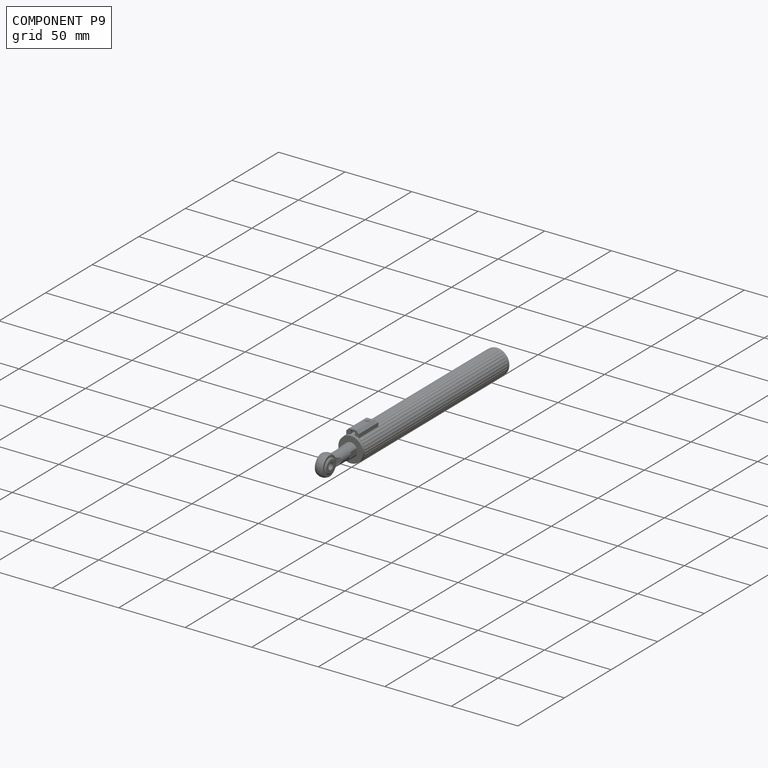
[diagram: component P9 — assembled]
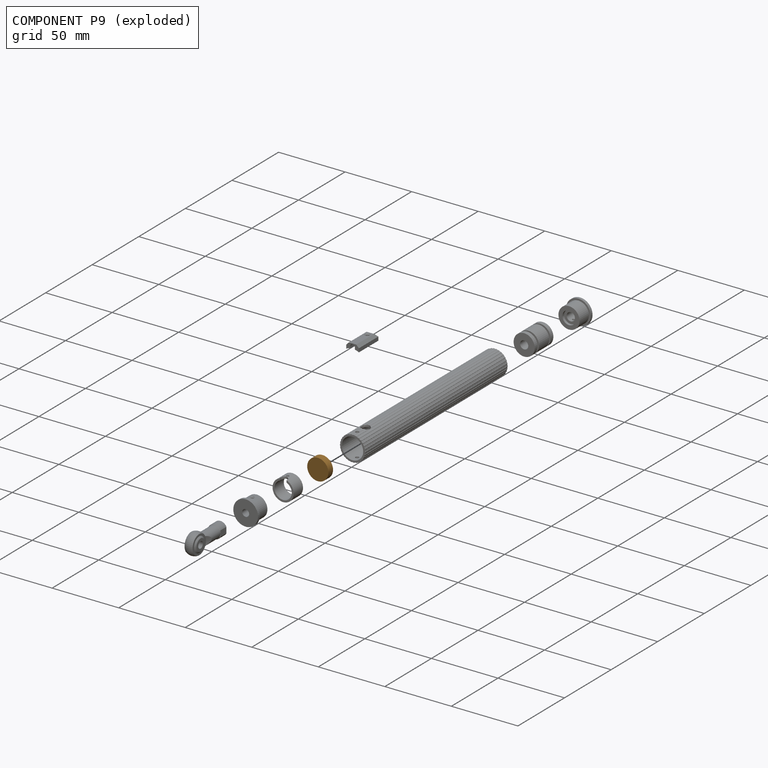
[diagram: component P9 — exploded]
COMPONENT P9 — geometry summary (no construction recipe available for this part):
  bounding box: 15.9 x 15.9 x 5.0 mm
  B-rep topology: 1 solid, 3 faces, 6 edges
  volume: 993 mm^3 (79% of its bounding box)
  symmetry: 2-fold rotationally symmetric about the x axis; revolution-symmetric about the y axis through its bounding-box center; 2-fold rotationally symmetric about the z axis; mirror-symmetric across its x mid-plane, y mid-plane, z mid-plane
Held by: FASTENED mate "Fastened 4" to P2; FASTENED mate "Fastened 2" to P7; FASTENED mate "Fastened 4" to P2; FASTENED mate "Fastened 2" to P7.
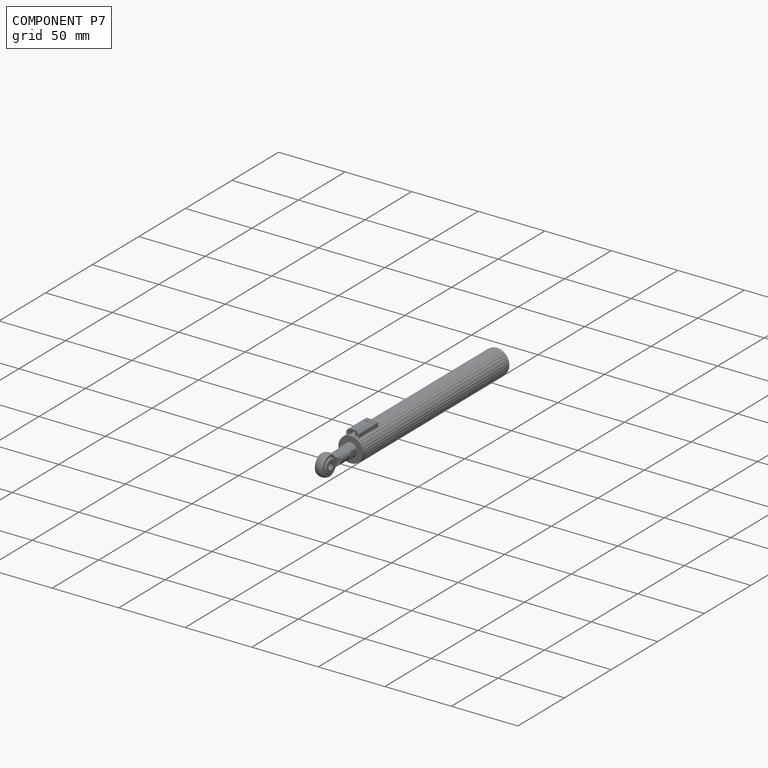
[diagram: component P7 — assembled]
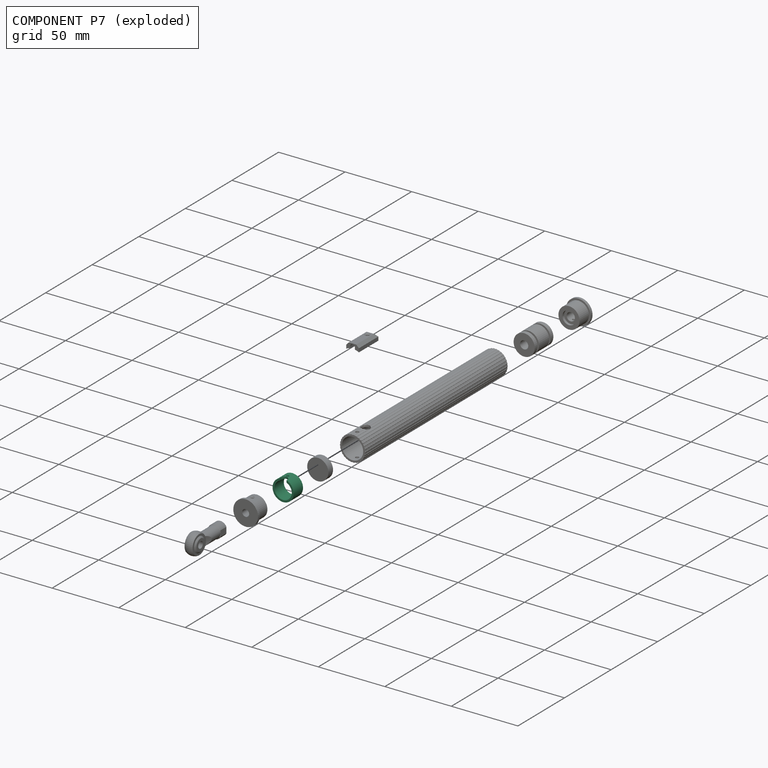
[diagram: component P7 — exploded]
COMPONENT P7 — recipe-attached (CADFS 00166288, mesh-verified: the recipe's output STEP matches this component's geometry to below the mesh-comparison resolution (tessellation chordal tolerance ~0.0369 mm)).
Held by: FASTENED mate "Fastened 2" to P9; FASTENED mate "Fastened 2" to P9.
Construction recipe (FeatureScript — the CAD program that rebuilds this solid; sketch coordinates are in the units given by the * unit suffixes, e.g. mm):

FeatureScript 1511;
import(path : "onshape/std/geometry.fs", version : "1511.0");
import(path : "onshape/std/common.fs", version : "1511.0");
const mm = millimeter;
const VERTEX = EntityType.VERTEX;
const EDGE = EntityType.EDGE;
const FACE = EntityType.FACE;
const BODY = EntityType.BODY;
function v(x, y){return vector(x, y);}
function OD(order){return orderDisambiguation(order);}
function OSD(set){return originalSetDisambiguation(set);}
function TD(topology){return topologyDisambiguation(topology);}
function TDD(query){return trueDependencyDisambiguation(query);}
function sQuery(a, b, c) {return sketchEntityQuery(a, b, c);}

annotation { "Feature Type Name" : "Feature", "Feature Type Description" : "" }
export const myFeature = defineFeature(function(context is Context, id is Id, definition is map)
    precondition{}
    {
        {
            assignVariable(context, id + "F0", {"name" : "Main_Length", "anyValue" : 10});
        }
        {
            var Q0;
            Q0=qCreatedBy(makeId("Front.planeOp"),FACE);
            var sketch = newSketch(context, id + "F1", { "sketchPlane" : qUnion([Q0])});
            skCircle(sketch, "E0", {"center": v(0, 0) * mm, "radius": 7.95 * mm});
            skCircle(sketch, "E1", {"center": v(0, 0) * mm, "radius": 6.5 * mm});
            skSolve(sketch);
        }
        {
            var Q0;
            Q0=makeQuery(id+"F1.imprint","IMPRINT",FACE,{"disambiguationData":[TD([[makeQuery(id+"F1.imprint","IMPRINT",EDGE,{"derivedFrom":sQuery(id+"F1.wireOp",EDGE,"E0")}),1.0]])]});
            extrude(context, id + "F2", {"entities" : qUnion([Q0]), "depth" : (getVariable(context, 'Main_Length')) * mm});
        }
        {
            var Q0;
            Q0=qCreatedBy(makeId("Top.planeOp"),FACE);
            var sketch = newSketch(context, id + "F3", { "sketchPlane" : qUnion([Q0])});
            skArc(sketch, "E2", {"start": v(2.5, -9) * mm, "mid": v(0, -6.5) * mm, "end": v(-2.5, -9) * mm});
            skLineSegment(sketch, "E3", {"start": v(-2.5, -9) * mm, "end": v(-2.5, -10) * mm});
            skLineSegment(sketch, "E4", {"start": v(2.5, -9) * mm, "end": v(2.5, -10) * mm});
            skLineSegment(sketch, "E5.0", {"start": v(7.95, -10) * mm, "end": v(-7.95, -10) * mm});
            skCircle(sketch, "E6", {"center": v(0, -5) * mm, "radius": 1 * mm});
            skSolve(sketch);
        }
        {
            var Q0;
            Q0=makeQuery(id+"F3.imprint","IMPRINT",FACE,{"disambiguationData":[TD([[makeQuery(id+"F3.imprint","IMPRINT",EDGE,{"derivedFrom":sQuery(id+"F3.wireOp",EDGE,"E6")}),1.0]])]});
            var Q1;
            Q1=makeQuery(id+"F3.imprint","IMPRINT",FACE,{"disambiguationData":[TD([[makeQuery(id+"F3.imprint","IMPRINT",EDGE,{"derivedFrom":sQuery(id+"F3.wireOp",EDGE,"E2")}),1.0]])]});
            extrude(context, id + "F4", {"entities" : qUnion([Q0, Q1]), "operationType" : NewBodyOperationType.REMOVE, "endBound" : BoundingType.THROUGH_ALL, "depth" : 25 * mm});
        }
    });
